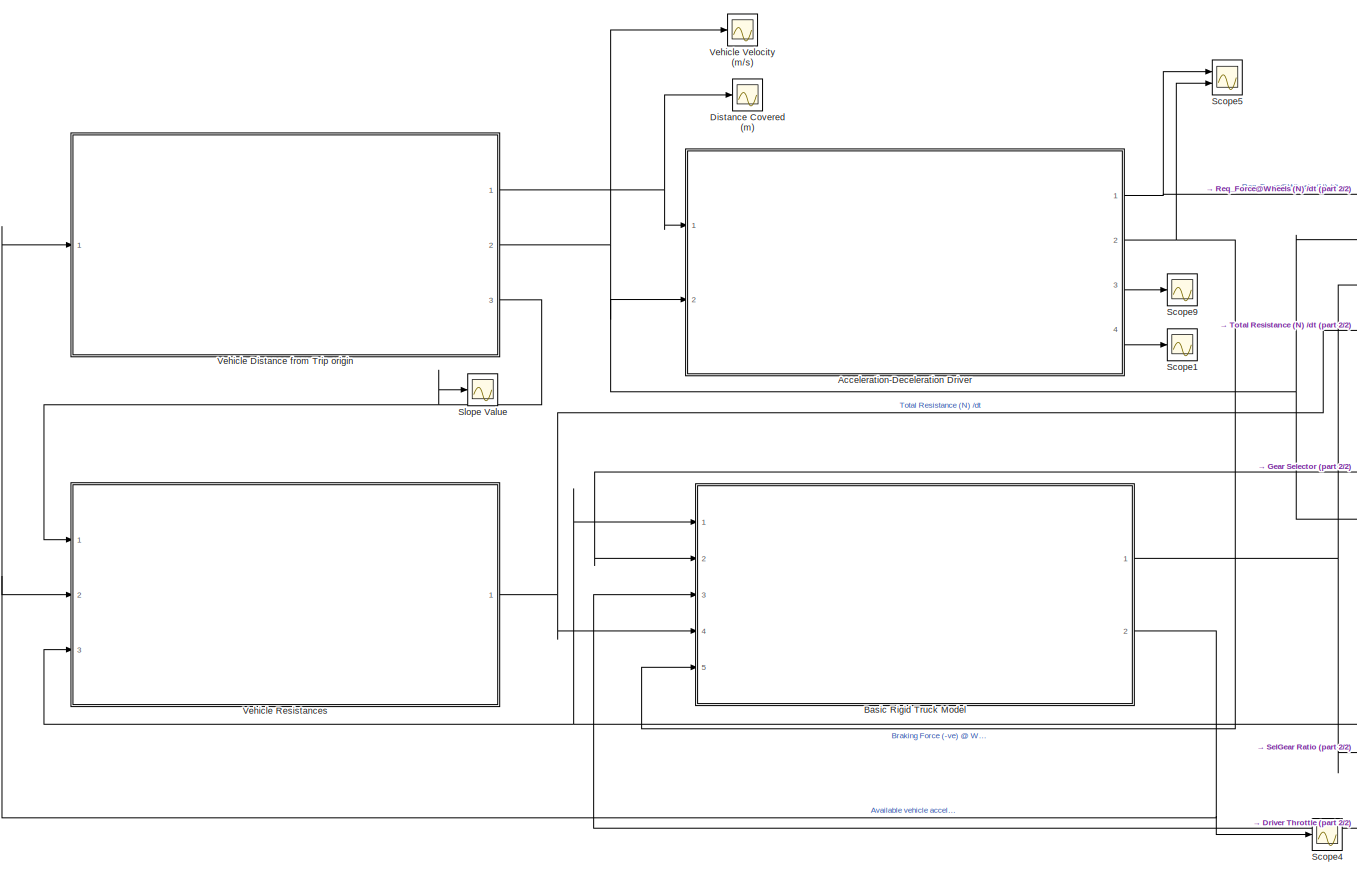
[diagram: root canvas - part 1/2, left side, full height]
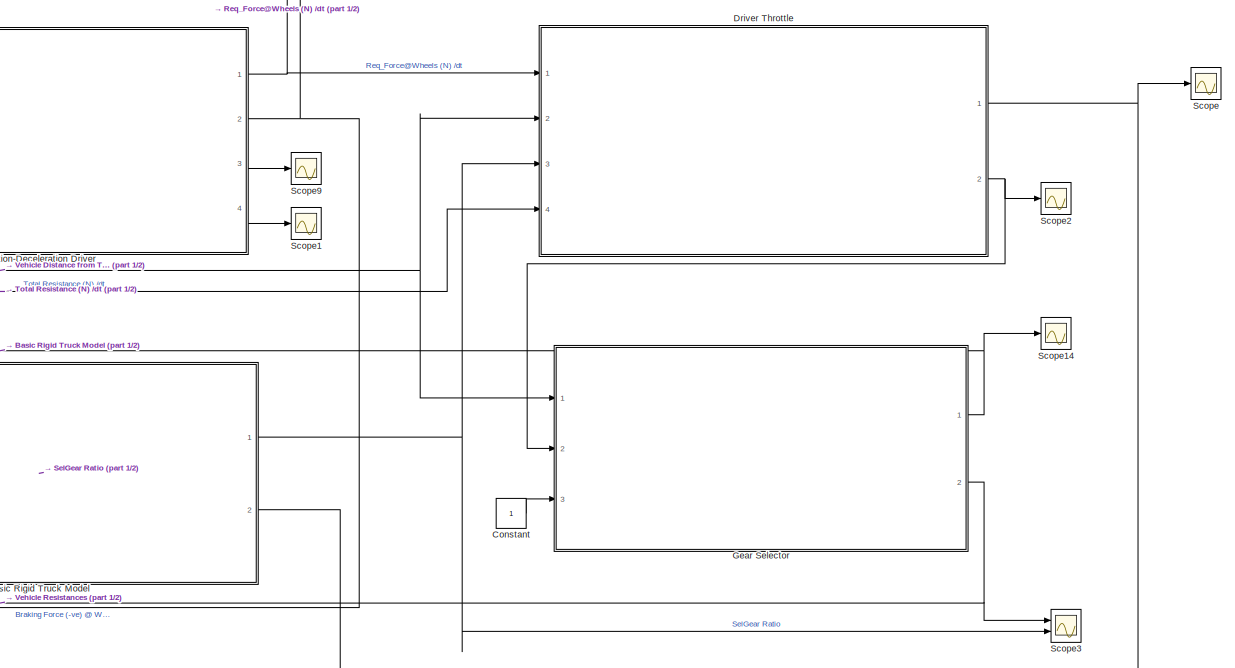
[diagram: root canvas - part 2/2, right side, full height]
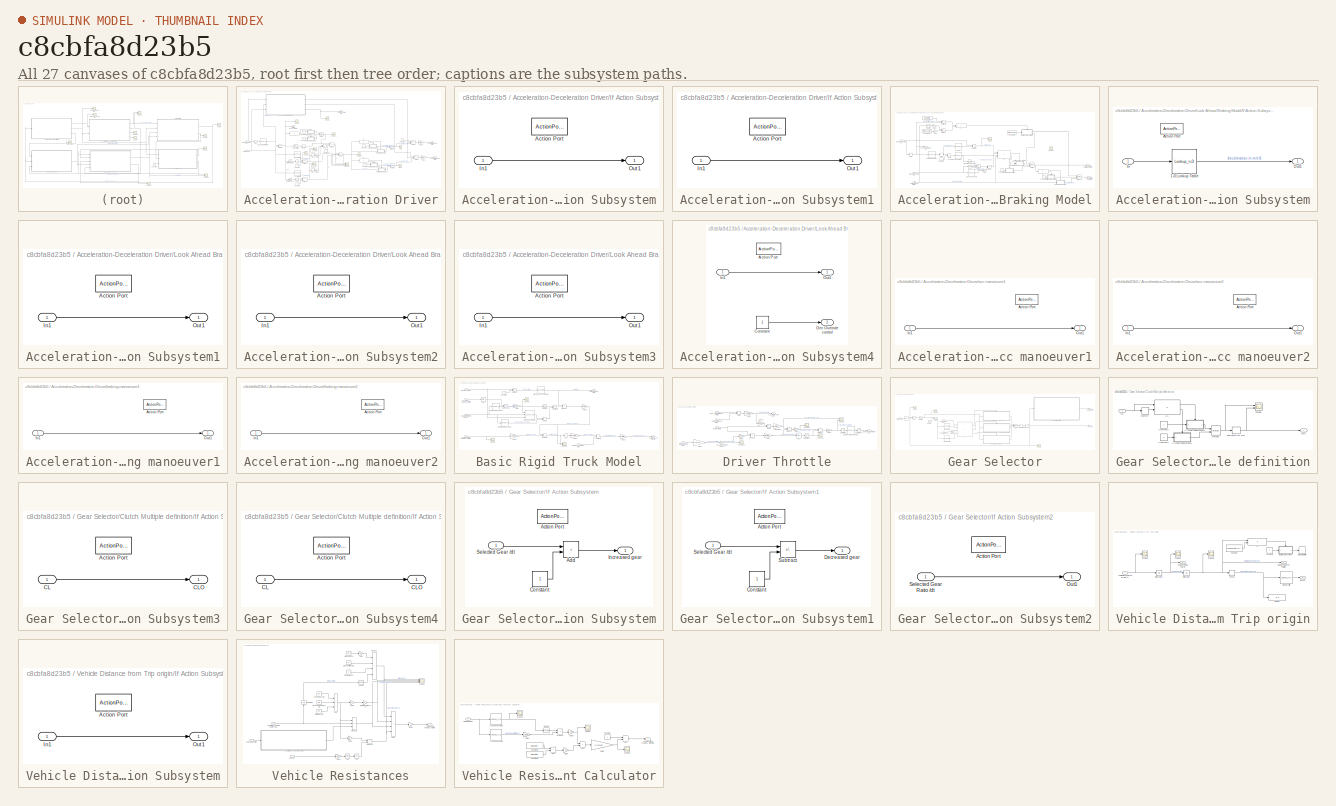
[diagram: thumbnail index - all 27 canvases of the model, root first then tree order]
MODEL slx_c8cbfa8d23b5
KIND model
CONFIG AbsTol = auto
CONFIG EnableMultiTasking = off
CONFIG FixedStep = dt
CONFIG MaxStep = auto
CONFIG MinStep = auto
CONFIG RelTol = 1e-3
CONFIG SampleTimeConstraint = Unconstrained
CONFIG SolverName = FixedStepAuto
CONFIG StartTime = 0.0
CONFIG StopTime = 90
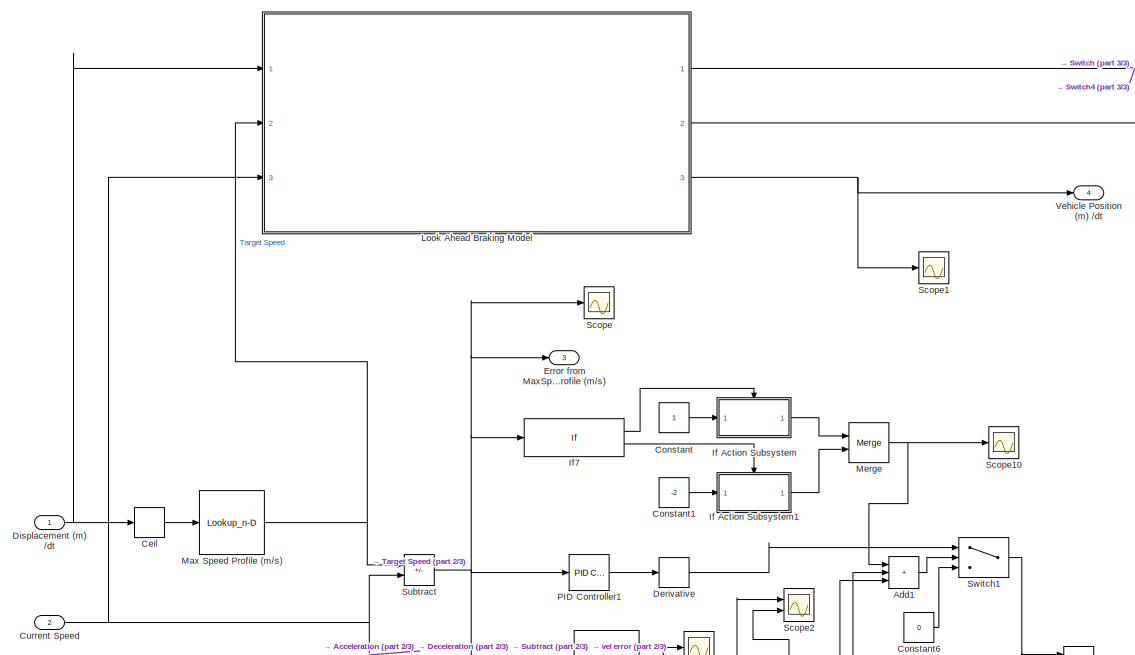
[diagram: Acceleration-Deceleration Driver - part 1/3, top left region]
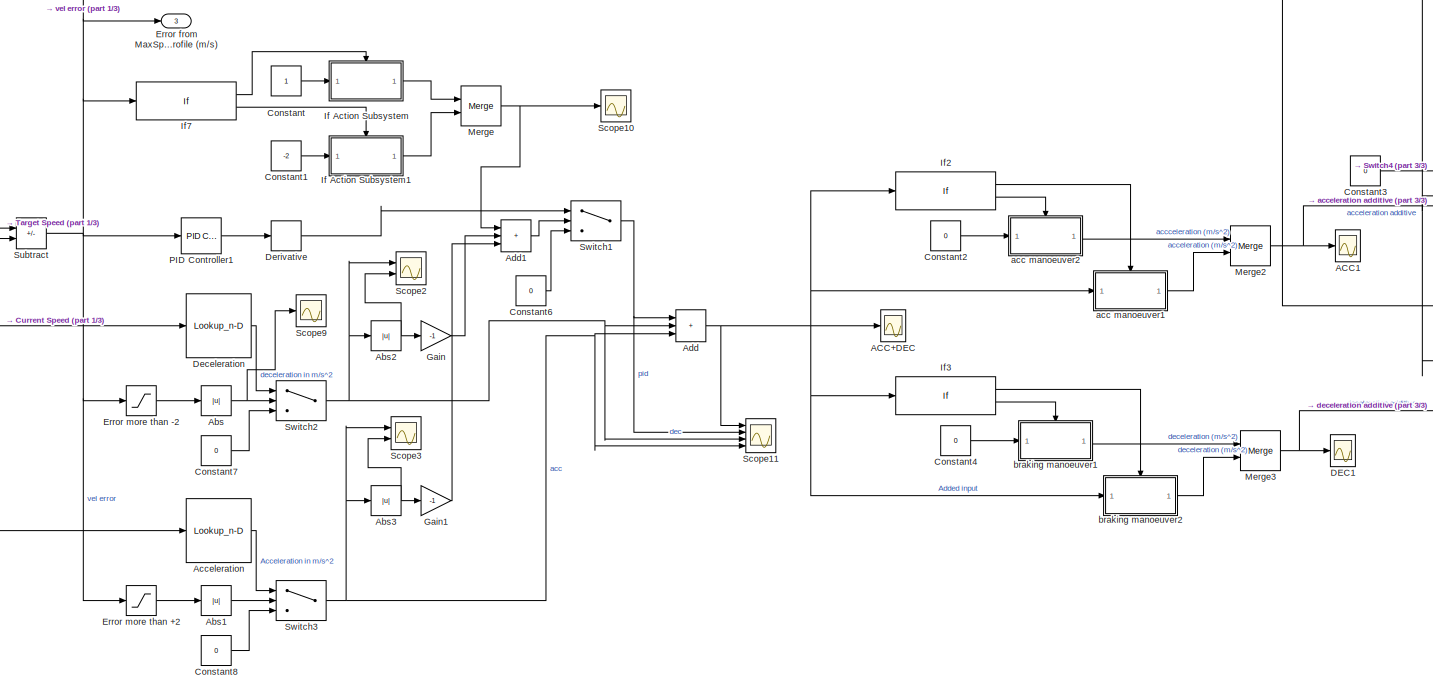
[diagram: Acceleration-Deceleration Driver - part 2/3, central region]
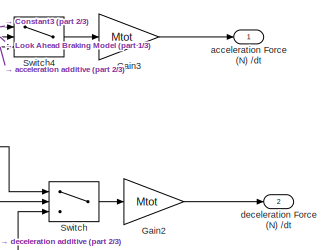
[diagram: Acceleration-Deceleration Driver - part 3/3, middle right region]
BLOCK [SubSystem] Acceleration-Deceleration Driver
  Ports = [2, 4]
  RequestExecContextInheritance = off
BLOCK [Scope] Acceleration-Deceleration Driver/ACC+DEC
  Floating = off
  NumInputPorts = 1
  Ports = [1]
  ScopeSpecificationString = Simulink.scopes.TimeScopeBlockCfg('CurrentConfiguration', extmgr.ConfigurationSet(extmgr.Configuration('Core','General UI',true),extmgr.Configuration('Core','Source UI',true),extmgr.Configuration('Sources','WiredSimulink',true),extmgr.Configuration('Visuals','Time Domain',true,'SerializedDisplays',{struct('MinYLimReal','-0.44741','MaxYLimReal','1.16082','YLabelReal','','MinYLimMag','0.00000','MaxY...<+1360ch>
BLOCK [Scope] Acceleration-Deceleration Driver/ACC1
  Floating = off
  NumInputPorts = 1
  Ports = [1]
  ScopeSpecificationString = Simulink.scopes.TimeScopeBlockCfg('CurrentConfiguration', extmgr.ConfigurationSet(extmgr.Configuration('Core','General UI',true),extmgr.Configuration('Core','Source UI',true),extmgr.Configuration('Sources','WiredSimulink',true,'DataLoggingVariableName','ScopeData1'),extmgr.Configuration('Visuals','Time Domain',true,'SerializedDisplays',{struct('MinYLimReal','-0.125','MaxYLimReal','1.125','YLabelRe...<+1398ch>
BLOCK [Abs] Acceleration-Deceleration Driver/Abs
  SaturateOnIntegerOverflow = off
BLOCK [Abs] Acceleration-Deceleration Driver/Abs1
  SaturateOnIntegerOverflow = off
BLOCK [Abs] Acceleration-Deceleration Driver/Abs2
  SaturateOnIntegerOverflow = off
BLOCK [Abs] Acceleration-Deceleration Driver/Abs3
  SaturateOnIntegerOverflow = off
BLOCK [Lookup_n-D] Acceleration-Deceleration Driver/Acceleration
  BreakpointsForDimension1 = AccLim(:,1)
  InputPortMap = u0
  InternalRulePriority = Speed
  NumberOfTableDimensions = 1
  Ports = [1, 1]
  RndMeth = Simplest
  Table = AccLim(:,2)
BLOCK [Sum] Acceleration-Deceleration Driver/Add
  IconShape = rectangular
  Inputs = +++
  Ports = [3, 1]
BLOCK [Sum] Acceleration-Deceleration Driver/Add1
  IconShape = rectangular
  Inputs = +++
  Ports = [3, 1]
BLOCK [Rounding] Acceleration-Deceleration Driver/Ceil
  Operator = ceil
BLOCK [Constant] Acceleration-Deceleration Driver/Constant
BLOCK [Constant] Acceleration-Deceleration Driver/Constant1
  Value = -2
BLOCK [Constant] Acceleration-Deceleration Driver/Constant2
  Value = 0
BLOCK [Constant] Acceleration-Deceleration Driver/Constant3
  Value = 0
BLOCK [Constant] Acceleration-Deceleration Driver/Constant4
  Value = 0
BLOCK [Constant] Acceleration-Deceleration Driver/Constant6
  Value = 0
BLOCK [Constant] Acceleration-Deceleration Driver/Constant7
  Value = 0
BLOCK [Constant] Acceleration-Deceleration Driver/Constant8
  Value = 0
BLOCK [Inport] Acceleration-Deceleration Driver/Current Speed
  Port = 2
BLOCK [Scope] Acceleration-Deceleration Driver/DEC1
  Floating = off
  NumInputPorts = 1
  Ports = [1]
  ScopeSpecificationString = Simulink.scopes.TimeScopeBlockCfg('CurrentConfiguration', extmgr.ConfigurationSet(extmgr.Configuration('Core','General UI',true),extmgr.Configuration('Core','Source UI',true),extmgr.Configuration('Sources','WiredSimulink',true,'DataLoggingVariableName','ScopeData2'),extmgr.Configuration('Visuals','Time Domain',true,'SerializedDisplays',{struct('MinYLimReal','-0.32241','MaxYLimReal','0.03582','YLab...<+1409ch>
BLOCK [Lookup_n-D] Acceleration-Deceleration Driver/Deceleration
  BreakpointsForDimension1 = AccLim(:,1)
  InputPortMap = u0
  InternalRulePriority = Speed
  NumberOfTableDimensions = 1
  Ports = [1, 1]
  RndMeth = Simplest
  Table = AccLim(:,3)
BLOCK [Derivative] Acceleration-Deceleration Driver/Derivative
BLOCK [Inport] Acceleration-Deceleration Driver/Displacement (m) //dt
BLOCK [Outport] Acceleration-Deceleration Driver/Error from MaxSpeedProfile (m//s)
  Port = 3
BLOCK [Saturate] Acceleration-Deceleration Driver/Error more than +2
  LowerLimit = 4
  UpperLimit = inf
BLOCK [Saturate] Acceleration-Deceleration Driver/Error more than -2
  LowerLimit = -inf
  UpperLimit = -4
BLOCK [Gain] Acceleration-Deceleration Driver/Gain
  Gain = -1
BLOCK [Gain] Acceleration-Deceleration Driver/Gain1
  Gain = -1
BLOCK [Gain] Acceleration-Deceleration Driver/Gain2
  Gain = Mtot
BLOCK [Gain] Acceleration-Deceleration Driver/Gain3
  Gain = Mtot
BLOCK [SubSystem] Acceleration-Deceleration Driver/If Action Subsystem
  Ports = [1, 1, 0, 0, 0, 0, 0, 1]
  RequestExecContextInheritance = off
  TreatAsAtomicUnit = on
BLOCK [ActionPort] Acceleration-Deceleration Driver/If Action Subsystem/Action Port
  ActionPortLabel = if(u1 > 0 & u1 <= 4)
BLOCK [Inport] Acceleration-Deceleration Driver/If Action Subsystem/In1
BLOCK [Outport] Acceleration-Deceleration Driver/If Action Subsystem/Out1
BLOCK [SubSystem] Acceleration-Deceleration Driver/If Action Subsystem1
  Ports = [1, 1, 0, 0, 0, 0, 0, 1]
  RequestExecContextInheritance = off
  TreatAsAtomicUnit = on
BLOCK [ActionPort] Acceleration-Deceleration Driver/If Action Subsystem1/Action Port
  ActionPortLabel = elseif(u1 >= -4 & u1 <0)
BLOCK [Inport] Acceleration-Deceleration Driver/If Action Subsystem1/In1
BLOCK [Outport] Acceleration-Deceleration Driver/If Action Subsystem1/Out1
BLOCK [If] Acceleration-Deceleration Driver/If2
  Ports = [1, 2]
BLOCK [If] Acceleration-Deceleration Driver/If3
  IfExpression = u1 < 0
  Ports = [1, 2]
BLOCK [If] Acceleration-Deceleration Driver/If7
  ElseIfExpressions = u1 >= -4 & u1 <0
  IfExpression = u1 > 0 & u1 <= 4
  Ports = [1, 2]
  ShowElse = off
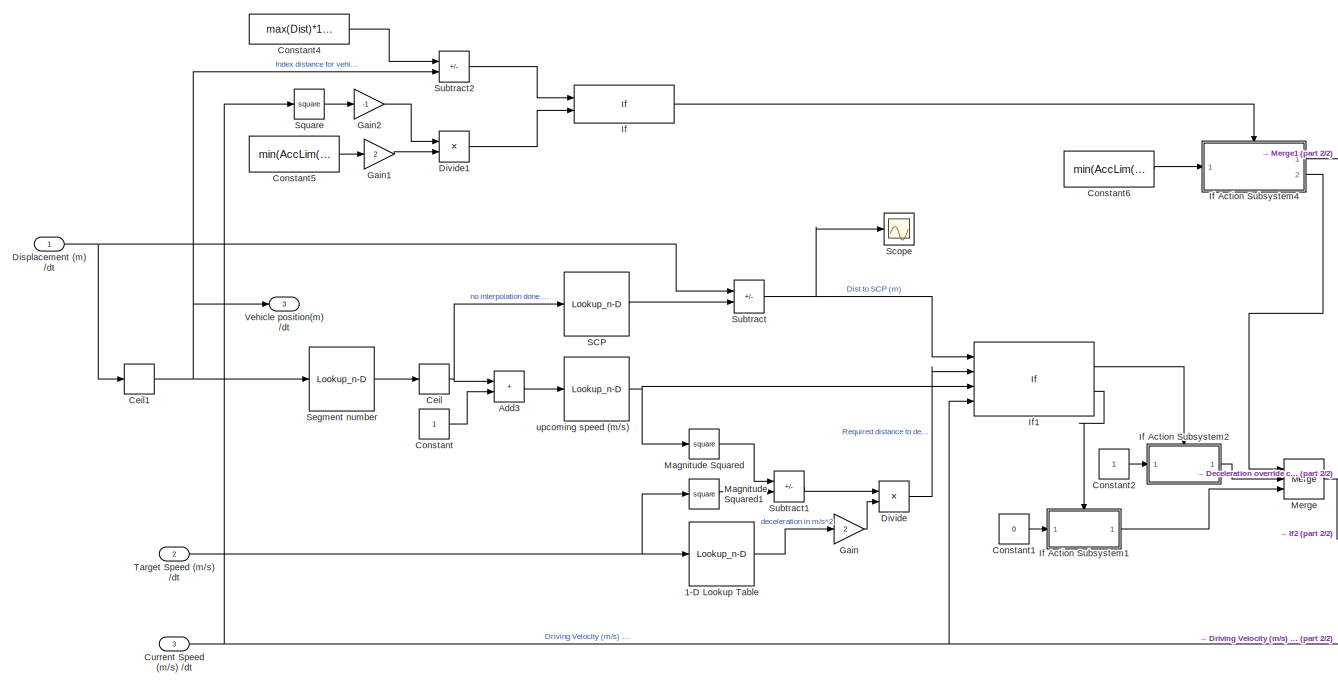
[diagram: Acceleration-Deceleration Driver/Look Ahead Braking Model - part 1/2, center side, full height]
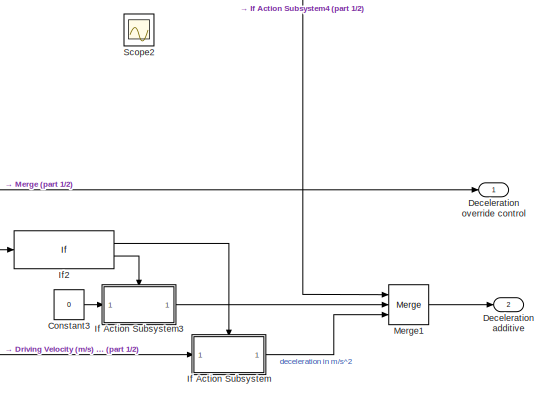
[diagram: Acceleration-Deceleration Driver/Look Ahead Braking Model - part 2/2, bottom right region]
BLOCK [SubSystem] Acceleration-Deceleration Driver/Look Ahead Braking Model
  Ports = [3, 3]
  RequestExecContextInheritance = off
BLOCK [Lookup_n-D] Acceleration-Deceleration Driver/Look Ahead Braking Model/1-D Lookup Table
  BreakpointsForDimension1 = AccLim(:,1)
  InputPortMap = u0
  InternalRulePriority = Speed
  NumberOfTableDimensions = 1
  Ports = [1, 1]
  RndMeth = Simplest
  Table = AccLim(:,3)
BLOCK [Sum] Acceleration-Deceleration Driver/Look Ahead Braking Model/Add3
  IconShape = rectangular
  Ports = [2, 1]
BLOCK [Rounding] Acceleration-Deceleration Driver/Look Ahead Braking Model/Ceil
  Operator = ceil
BLOCK [Rounding] Acceleration-Deceleration Driver/Look Ahead Braking Model/Ceil1
  Operator = ceil
BLOCK [Constant] Acceleration-Deceleration Driver/Look Ahead Braking Model/Constant
BLOCK [Constant] Acceleration-Deceleration Driver/Look Ahead Braking Model/Constant1
  Value = 0
BLOCK [Constant] Acceleration-Deceleration Driver/Look Ahead Braking Model/Constant2
BLOCK [Constant] Acceleration-Deceleration Driver/Look Ahead Braking Model/Constant3
  Value = 0
BLOCK [Constant] Acceleration-Deceleration Driver/Look Ahead Braking Model/Constant4
  Value = max(Dist)*1000
BLOCK [Constant] Acceleration-Deceleration Driver/Look Ahead Braking Model/Constant5
  Value = min(AccLim(:,3))
BLOCK [Constant] Acceleration-Deceleration Driver/Look Ahead Braking Model/Constant6
  Value = min(AccLim(:,3))
BLOCK [Inport] Acceleration-Deceleration Driver/Look Ahead Braking Model/Current Speed (m//s) //dt
  Port = 3
BLOCK [Outport] Acceleration-Deceleration Driver/Look Ahead Braking Model/Deceleration additive
  Port = 2
BLOCK [Outport] Acceleration-Deceleration Driver/Look Ahead Braking Model/Deceleration override control
BLOCK [Inport] Acceleration-Deceleration Driver/Look Ahead Braking Model/Displacement (m) //dt
BLOCK [Product] Acceleration-Deceleration Driver/Look Ahead Braking Model/Divide
  Inputs = */
  Ports = [2, 1]
BLOCK [Product] Acceleration-Deceleration Driver/Look Ahead Braking Model/Divide1
  Inputs = */
  Ports = [2, 1]
BLOCK [Gain] Acceleration-Deceleration Driver/Look Ahead Braking Model/Gain
  Gain = 2
BLOCK [Gain] Acceleration-Deceleration Driver/Look Ahead Braking Model/Gain1
  Gain = 2
BLOCK [Gain] Acceleration-Deceleration Driver/Look Ahead Braking Model/Gain2
  Gain = -1
BLOCK [If] Acceleration-Deceleration Driver/Look Ahead Braking Model/If
  IfExpression = u1 == u2
  NumInputs = 2
  Ports = [2, 1]
  ShowElse = off
BLOCK [SubSystem] Acceleration-Deceleration Driver/Look Ahead Braking Model/If Action Subsystem
  Ports = [1, 1, 0, 0, 0, 0, 0, 1]
  RequestExecContextInheritance = off
  TreatAsAtomicUnit = on
BLOCK [Lookup_n-D] Acceleration-Deceleration Driver/Look Ahead Braking Model/If Action Subsystem/1-D Lookup Table
  BreakpointsForDimension1 = AccLim(:,1)
  InputPortMap = u0
  InternalRulePriority = Speed
  NumberOfTableDimensions = 1
  Ports = [1, 1]
  RndMeth = Simplest
  Table = AccLim(:,3)
BLOCK [ActionPort] Acceleration-Deceleration Driver/Look Ahead Braking Model/If Action Subsystem/Action Port
  ActionPortLabel = if(u1 > 0)
BLOCK [Inport] Acceleration-Deceleration Driver/Look Ahead Braking Model/If Action Subsystem/In
BLOCK [Outport] Acceleration-Deceleration Driver/Look Ahead Braking Model/If Action Subsystem/Out1
BLOCK [SubSystem] Acceleration-Deceleration Driver/Look Ahead Braking Model/If Action Subsystem1
  Ports = [1, 1, 0, 0, 0, 0, 0, 1]
  RequestExecContextInheritance = off
  TreatAsAtomicUnit = on
BLOCK [ActionPort] Acceleration-Deceleration Driver/Look Ahead Braking Model/If Action Subsystem1/Action Port
  ActionPortLabel = else
BLOCK [Inport] Acceleration-Deceleration Driver/Look Ahead Braking Model/If Action Subsystem1/In1
BLOCK [Outport] Acceleration-Deceleration Driver/Look Ahead Braking Model/If Action Subsystem1/Out1
BLOCK [SubSystem] Acceleration-Deceleration Driver/Look Ahead Braking Model/If Action Subsystem2
  Ports = [1, 1, 0, 0, 0, 0, 0, 1]
  RequestExecContextInheritance = off
  TreatAsAtomicUnit = on
BLOCK [ActionPort] Acceleration-Deceleration Driver/Look Ahead Braking Model/If Action Subsystem2/Action Port
  ActionPortLabel = if(u1 <= u2 & u3 < u4)
BLOCK [Inport] Acceleration-Deceleration Driver/Look Ahead Braking Model/If Action Subsystem2/In1
BLOCK [Outport] Acceleration-Deceleration Driver/Look Ahead Braking Model/If Action Subsystem2/Out1
BLOCK [SubSystem] Acceleration-Deceleration Driver/Look Ahead Braking Model/If Action Subsystem3
  Ports = [1, 1, 0, 0, 0, 0, 0, 1]
  RequestExecContextInheritance = off
  TreatAsAtomicUnit = on
BLOCK [ActionPort] Acceleration-Deceleration Driver/Look Ahead Braking Model/If Action Subsystem3/Action Port
  ActionPortLabel = else
BLOCK [Inport] Acceleration-Deceleration Driver/Look Ahead Braking Model/If Action Subsystem3/In1
BLOCK [Outport] Acceleration-Deceleration Driver/Look Ahead Braking Model/If Action Subsystem3/Out1
BLOCK [SubSystem] Acceleration-Deceleration Driver/Look Ahead Braking Model/If Action Subsystem4
  Ports = [1, 2, 0, 0, 0, 0, 0, 1]
  RequestExecContextInheritance = off
  TreatAsAtomicUnit = on
BLOCK [ActionPort] Acceleration-Deceleration Driver/Look Ahead Braking Model/If Action Subsystem4/Action Port
  ActionPortLabel = if(u1 == u2)
BLOCK [Constant] Acceleration-Deceleration Driver/Look Ahead Braking Model/If Action Subsystem4/Constant
BLOCK [Outport] Acceleration-Deceleration Driver/Look Ahead Braking Model/If Action Subsystem4/Dec Override control
  Port = 2
BLOCK [Inport] Acceleration-Deceleration Driver/Look Ahead Braking Model/If Action Subsystem4/In1
BLOCK [Outport] Acceleration-Deceleration Driver/Look Ahead Braking Model/If Action Subsystem4/Out1
BLOCK [If] Acceleration-Deceleration Driver/Look Ahead Braking Model/If1
  IfExpression = u1 <= u2 & u3 < u4
  NumInputs = 4
  Ports = [4, 2]
BLOCK [If] Acceleration-Deceleration Driver/Look Ahead Braking Model/If2
  Ports = [1, 2]
BLOCK [Math] Acceleration-Deceleration Driver/Look Ahead Braking Model/Magnitude Squared
  Operator = square
  Ports = [1, 1]
BLOCK [Math] Acceleration-Deceleration Driver/Look Ahead Braking Model/Magnitude Squared1
  Operator = square
  Ports = [1, 1]
BLOCK [Merge] Acceleration-Deceleration Driver/Look Ahead Braking Model/Merge
  Inputs = 3
  Ports = [3, 1]
BLOCK [Merge] Acceleration-Deceleration Driver/Look Ahead Braking Model/Merge1
  Inputs = 3
  Ports = [3, 1]
BLOCK [Lookup_n-D] Acceleration-Deceleration Driver/Look Ahead Braking Model/SCP
  BreakpointsForDimension1 = SegNo
  BreakpointsForDimension2 = G1Inprpm
  InputPortMap = u0
  InternalRulePriority = Speed
  InterpMethod = Linear Lagrange
  NumberOfTableDimensions = 1
  Ports = [1, 1]
  RndMeth = Simplest
  Table = CovDist
BLOCK [Scope] Acceleration-Deceleration Driver/Look Ahead Braking Model/Scope
  Floating = off
  NumInputPorts = 1
  Ports = [1]
  ScopeSpecificationString = Simulink.scopes.TimeScopeBlockCfg('CurrentConfiguration', extmgr.ConfigurationSet(extmgr.Configuration('Core','General UI',true),extmgr.Configuration('Core','Source UI',true),extmgr.Configuration('Sources','WiredSimulink',true,'DataLoggingVariableName','ScopeData3'),extmgr.Configuration('Visuals','Time Domain',true,'SerializedDisplays',{struct('MinYLimReal','-7.62346','MaxYLimReal','68.74449','YLa...<+1378ch>
BLOCK [Scope] Acceleration-Deceleration Driver/Look Ahead Braking Model/Scope2
  Floating = off
  NumInputPorts = 1
  Ports = [1]
  ScopeSpecificationString = Simulink.scopes.TimeScopeBlockCfg('CurrentConfiguration', extmgr.ConfigurationSet(extmgr.Configuration('Core','General UI',true),extmgr.Configuration('Core','Source UI',true),extmgr.Configuration('Sources','WiredSimulink',true,'DataLoggingVariableName','ScopeData33'),extmgr.Configuration('Visuals','Time Domain',true),extmgr.Configuration('Tools','Plot Navigation',true),extmgr.Configuration('Tools'...<+41ch>
BLOCK [Lookup_n-D] Acceleration-Deceleration Driver/Look Ahead Braking Model/Segment number
  BreakpointsForDimension1 = CovDist
  BreakpointsForDimension2 = G1Inprpm
  InputPortMap = u0
  InternalRulePriority = Speed
  InterpMethod = Linear Lagrange
  NumberOfTableDimensions = 1
  Ports = [1, 1]
  RndMeth = Simplest
  Table = SegNo
BLOCK [Math] Acceleration-Deceleration Driver/Look Ahead Braking Model/Square
  Operator = square
  Ports = [1, 1]
BLOCK [Sum] Acceleration-Deceleration Driver/Look Ahead Braking Model/Subtract
  IconShape = rectangular
  Inputs = -+
  Ports = [2, 1]
BLOCK [Sum] Acceleration-Deceleration Driver/Look Ahead Braking Model/Subtract1
  IconShape = rectangular
  Inputs = +-
  Ports = [2, 1]
BLOCK [Sum] Acceleration-Deceleration Driver/Look Ahead Braking Model/Subtract2
  IconShape = rectangular
  Inputs = +-
  Ports = [2, 1]
BLOCK [Inport] Acceleration-Deceleration Driver/Look Ahead Braking Model/Target Speed (m//s) //dt
  Port = 2
BLOCK [Outport] Acceleration-Deceleration Driver/Look Ahead Braking Model/Vehicle position(m) //dt
  Port = 3
BLOCK [Lookup_n-D] Acceleration-Deceleration Driver/Look Ahead Braking Model/upcoming speed (m//s)
  BreakpointsForDimension1 = SegNo
  BreakpointsForDimension2 = G1Inprpm
  InputPortMap = u0
  InternalRulePriority = Speed
  InterpMethod = Linear Lagrange
  NumberOfTableDimensions = 1
  Ports = [1, 1]
  RndMeth = Simplest
  Table = SegSPLatinmps
BLOCK [Lookup_n-D] Acceleration-Deceleration Driver/Max Speed Profile (m//s)
  BreakpointsForDimension1 = [1:length(MaxSpeedProfile)]
  BreakpointsForDimension2 = G1Inprpm
  InputPortMap = u0
  InternalRulePriority = Speed
  InterpMethod = Linear Lagrange
  NumberOfTableDimensions = 1
  Ports = [1, 1]
  RndMeth = Simplest
  Table = MaxSpeedProfile
BLOCK [Merge] Acceleration-Deceleration Driver/Merge
  Ports = [2, 1]
BLOCK [Merge] Acceleration-Deceleration Driver/Merge2
  Ports = [2, 1]
BLOCK [Merge] Acceleration-Deceleration Driver/Merge3
  Ports = [2, 1]
BLOCK [Reference] Acceleration-Deceleration Driver/PID Controller1  REF=pid_lib/PID Controller
  Ports = [1, 1]
  SourceBlock = pid_lib/PID Controller
  SourceProductBaseCode = SL
  SourceType = PID 1dof
BLOCK [Scope] Acceleration-Deceleration Driver/Scope
  Floating = off
  NumInputPorts = 1
  Ports = [1]
  ScopeSpecificationString = Simulink.scopes.TimeScopeBlockCfg('CurrentConfiguration', extmgr.ConfigurationSet(extmgr.Configuration('Core','General UI',true),extmgr.Configuration('Core','Source UI',true),extmgr.Configuration('Sources','WiredSimulink',true,'DataLoggingVariableName','ScopeData18'),extmgr.Configuration('Visuals','Time Domain',true,'SerializedDisplays',{struct('MinYLimReal','-1.60531','MaxYLimReal','26.65941','YL...<+1373ch>
BLOCK [Scope] Acceleration-Deceleration Driver/Scope1
  Floating = off
  NumInputPorts = 1
  Ports = [1]
  ScopeSpecificationString = Simulink.scopes.TimeScopeBlockCfg('CurrentConfiguration', extmgr.ConfigurationSet(extmgr.Configuration('Core','General UI',true),extmgr.Configuration('Core','Source UI',true),extmgr.Configuration('Sources','WiredSimulink',true,'DataLoggingVariableName','ScopeData24'),extmgr.Configuration('Visuals','Time Domain',true,'SerializedDisplays',{struct('MinYLimReal','-7.5','MaxYLimReal','67.5','YLabelReal...<+1370ch>
BLOCK [Scope] Acceleration-Deceleration Driver/Scope10
  Floating = off
  NumInputPorts = 1
  Ports = [1]
  ScopeSpecificationString = Simulink.scopes.TimeScopeBlockCfg('CurrentConfiguration', extmgr.ConfigurationSet(extmgr.Configuration('Core','General UI',true),extmgr.Configuration('Core','Source UI',true),extmgr.Configuration('Sources','WiredSimulink',true,'DataLoggingVariableName','ScopeData4'),extmgr.Configuration('Visuals','Time Domain',true,'SerializedDisplays',{struct('MinYLimReal','0.9','MaxYLimReal','1.1','YLabelReal','...<+1394ch>
BLOCK [Scope] Acceleration-Deceleration Driver/Scope11
  Floating = off
  NumInputPorts = 4
  Ports = [4]
  ScopeSpecificationString = Simulink.scopes.TimeScopeBlockCfg('CurrentConfiguration', extmgr.ConfigurationSet(extmgr.Configuration('Core','General UI',true),extmgr.Configuration('Core','Source UI',true),extmgr.Configuration('Sources','WiredSimulink',true,'DataLoggingVariableName','ScopeData14'),extmgr.Configuration('Visuals','Time Domain',true,'SerializedDisplays',{struct('MinYLimReal','-0.44741','MaxYLimReal','1.16082','YLa...<+1510ch>
BLOCK [Scope] Acceleration-Deceleration Driver/Scope2
  Floating = off
  NumInputPorts = 2
  Ports = [2]
  ScopeSpecificationString = Simulink.scopes.TimeScopeBlockCfg('CurrentConfiguration', extmgr.ConfigurationSet(extmgr.Configuration('Core','General UI',true),extmgr.Configuration('Core','Source UI',true),extmgr.Configuration('Sources','WiredSimulink',true,'DataLoggingVariableName','ScopeData1'),extmgr.Configuration('Visuals','Time Domain',true),extmgr.Configuration('Tools','Plot Navigation',true),extmgr.Configuration('Tools',...<+40ch>
BLOCK [Scope] Acceleration-Deceleration Driver/Scope3
  Floating = off
  NumInputPorts = 2
  Ports = [2]
  ScopeSpecificationString = Simulink.scopes.TimeScopeBlockCfg('CurrentConfiguration', extmgr.ConfigurationSet(extmgr.Configuration('Core','General UI',true),extmgr.Configuration('Core','Source UI',true),extmgr.Configuration('Sources','WiredSimulink',true,'DataLoggingVariableName','ScopeData2'),extmgr.Configuration('Visuals','Time Domain',true),extmgr.Configuration('Tools','Plot Navigation',true),extmgr.Configuration('Tools',...<+40ch>
BLOCK [Scope] Acceleration-Deceleration Driver/Scope9
  Floating = off
  NumInputPorts = 1
  Ports = [1]
  ScopeSpecificationString = Simulink.scopes.TimeScopeBlockCfg('CurrentConfiguration', extmgr.ConfigurationSet(extmgr.Configuration('Core','General UI',true),extmgr.Configuration('Core','Source UI',true),extmgr.Configuration('Sources','WiredSimulink',true,'DataLoggingVariableName','ScopeData15'),extmgr.Configuration('Visuals','Time Domain',true,'SerializedDisplays',{struct('MinYLimReal','3.00000','MaxYLimReal','5.00000','YLab...<+1391ch>
BLOCK [Sum] Acceleration-Deceleration Driver/Subtract
  IconShape = rectangular
  Inputs = +-
  Ports = [2, 1]
BLOCK [Switch] Acceleration-Deceleration Driver/Switch
  Criteria = u2 > Threshold
  InputSameDT = off
  SaturateOnIntegerOverflow = off
BLOCK [Switch] Acceleration-Deceleration Driver/Switch1
  Criteria = u2 > Threshold
  InputSameDT = off
  SaturateOnIntegerOverflow = off
BLOCK [Switch] Acceleration-Deceleration Driver/Switch2
  Criteria = u2 > Threshold
  InputSameDT = off
  SaturateOnIntegerOverflow = off
  Threshold = 4
BLOCK [Switch] Acceleration-Deceleration Driver/Switch3
  Criteria = u2 > Threshold
  InputSameDT = off
  SaturateOnIntegerOverflow = off
  Threshold = 4
BLOCK [Switch] Acceleration-Deceleration Driver/Switch4
  Criteria = u2 > Threshold
  InputSameDT = off
  SaturateOnIntegerOverflow = off
BLOCK [Outport] Acceleration-Deceleration Driver/Vehicle Position (m) //dt
  Port = 4
BLOCK [SubSystem] Acceleration-Deceleration Driver/acc manoeuver1
  Ports = [1, 1, 0, 0, 0, 0, 0, 1]
  RequestExecContextInheritance = off
  TreatAsAtomicUnit = on
BLOCK [ActionPort] Acceleration-Deceleration Driver/acc manoeuver1/Action Port
  ActionPortLabel = if(u1 > 0)
BLOCK [Inport] Acceleration-Deceleration Driver/acc manoeuver1/In1
BLOCK [Outport] Acceleration-Deceleration Driver/acc manoeuver1/Out1
BLOCK [SubSystem] Acceleration-Deceleration Driver/acc manoeuver2
  Ports = [1, 1, 0, 0, 0, 0, 0, 1]
  RequestExecContextInheritance = off
  TreatAsAtomicUnit = on
BLOCK [ActionPort] Acceleration-Deceleration Driver/acc manoeuver2/Action Port
  ActionPortLabel = else
BLOCK [Inport] Acceleration-Deceleration Driver/acc manoeuver2/In1
BLOCK [Outport] Acceleration-Deceleration Driver/acc manoeuver2/Out1
BLOCK [Outport] Acceleration-Deceleration Driver/acceleration Force (N) //dt
BLOCK [SubSystem] Acceleration-Deceleration Driver/braking manoeuver1
  Ports = [1, 1, 0, 0, 0, 0, 0, 1]
  RequestExecContextInheritance = off
  TreatAsAtomicUnit = on
BLOCK [ActionPort] Acceleration-Deceleration Driver/braking manoeuver1/Action Port
  ActionPortLabel = else
BLOCK [Inport] Acceleration-Deceleration Driver/braking manoeuver1/In1
BLOCK [Outport] Acceleration-Deceleration Driver/braking manoeuver1/Out1
BLOCK [SubSystem] Acceleration-Deceleration Driver/braking manoeuver2
  Ports = [1, 1, 0, 0, 0, 0, 0, 1]
  RequestExecContextInheritance = off
  TreatAsAtomicUnit = on
BLOCK [ActionPort] Acceleration-Deceleration Driver/braking manoeuver2/Action Port
  ActionPortLabel = if(u1 < 0)
BLOCK [Inport] Acceleration-Deceleration Driver/braking manoeuver2/In1
BLOCK [Outport] Acceleration-Deceleration Driver/braking manoeuver2/Out1
BLOCK [Outport] Acceleration-Deceleration Driver/deceleration Force (N) //dt
  Port = 2
BLOCK [SubSystem] Basic Rigid Truck Model
  Ports = [5, 2]
  RequestExecContextInheritance = off
BLOCK [Inport] Basic Rigid Truck Model/0 - no drive // 1- Fully released clutch multiple
  Port = 2
BLOCK [Abs] Basic Rigid Truck Model/Abs
  SaturateOnIntegerOverflow = off
BLOCK [Sum] Basic Rigid Truck Model/Add2
  IconShape = rectangular
  Ports = [2, 1]
BLOCK [Inport] Basic Rigid Truck Model/Braking_Force (-ve) (N) //dt
  Port = 5
BLOCK [Product] Basic Rigid Truck Model/Clutch value
  Ports = [2, 1]
BLOCK [Constant] Basic Rigid Truck Model/Constant
BLOCK [LookupNDDirect] Basic Rigid Truck Model/Direct Lookup Table (n-D)
  NumberOfTableDimensions = 1
  Ports = [1, 1]
  Table = GRa
BLOCK [Inport] Basic Rigid Truck Model/Engine Rpm from driver //dt
  Port = 3
BLOCK [Lookup_n-D] Basic Rigid Truck Model/Engine Torque Table
  BreakpointsForDimension1 = EngineRpm
  BreakpointsForDimension2 = G1Inprpm
  InputPortMap = u0
  InternalRulePriority = Speed
  InterpMethod = Linear Lagrange
  NumberOfTableDimensions = 1
  Ports = [1, 1]
  RndMeth = Simplest
  Table = FLoadTor
BLOCK [Gain] Basic Rigid Truck Model/FDR1
  Gain = FDR
BLOCK [Lookup_n-D] Basic Rigid Truck Model/GBX Loss Tables
  BreakpointsForDimension1 = GInpTor
  BreakpointsForDimension2 = GInprpm
  BreakpointsForDimension3 = GearNo
  InputPortMap = u0,u1,u2
  InternalRulePriority = Speed
  InterpMethod = Linear Lagrange
  NumberOfTableDimensions = 3
  Ports = [3, 1]
  RndMeth = Simplest
  Table = GTorLoss
BLOCK [Gain] Basic Rigid Truck Model/Gain
  Gain = etaClutch
BLOCK [Gain] Basic Rigid Truck Model/Gain2
  Gain = 1/Mtot
BLOCK [Gain] Basic Rigid Truck Model/Gain4
  Gain = DynRolRad
BLOCK [Gain] Basic Rigid Truck Model/Gain6
  Gain = 1/DynRolRad
BLOCK [InitialCondition] Basic Rigid Truck Model/IC2
BLOCK [Lookup_n-D] Basic Rigid Truck Model/Motoring Torque Table
  BreakpointsForDimension1 = EngineRpm
  BreakpointsForDimension2 = G1Inprpm
  InputPortMap = u0
  InternalRulePriority = Speed
  InterpMethod = Linear Lagrange
  NumberOfTableDimensions = 1
  Ports = [1, 1]
  RndMeth = Simplest
  Table = MotoringTor
BLOCK [Product] Basic Rigid Truck Model/Product
  Ports = [2, 1]
BLOCK [Saturate] Basic Rigid Truck Model/Saturation
  LowerLimit = min(FLoadTorUse)
  UpperLimit = max(FLoadTorUse)
BLOCK [Scope] Basic Rigid Truck Model/Scope
  Floating = off
  NumInputPorts = 1
  Ports = [1]
  ScopeSpecificationString = Simulink.scopes.TimeScopeBlockCfg('CurrentConfiguration', extmgr.ConfigurationSet(extmgr.Configuration('Core','General UI',true),extmgr.Configuration('Core','Source UI',true),extmgr.Configuration('Sources','WiredSimulink',true,'DataLoggingVariableName','ScopeData10'),extmgr.Configuration('Visuals','Time Domain',true,'SerializedDisplays',{struct('MinYLimReal','-15860.78438','MaxYLimReal','1442.0378...<+1426ch>
BLOCK [Scope] Basic Rigid Truck Model/Scope1
  Floating = off
  NumInputPorts = 2
  Ports = [2]
  ScopeSpecificationString = Simulink.scopes.TimeScopeBlockCfg('CurrentConfiguration', extmgr.ConfigurationSet(extmgr.Configuration('Core','General UI',true),extmgr.Configuration('Core','Source UI',true),extmgr.Configuration('Sources','WiredSimulink',true,'DataLoggingVariableName','ScopeData17'),extmgr.Configuration('Visuals','Time Domain',true,'SerializedDisplays',{struct('MinYLimReal','-995.94579','MaxYLimReal','14542.82989...<+1511ch>
BLOCK [Scope] Basic Rigid Truck Model/Scope2
  Floating = off
  NumInputPorts = 1
  Ports = [1]
  ScopeSpecificationString = Simulink.scopes.TimeScopeBlockCfg('CurrentConfiguration', extmgr.ConfigurationSet(extmgr.Configuration('Core','General UI',true),extmgr.Configuration('Core','Source UI',true),extmgr.Configuration('Sources','WiredSimulink',true,'DataLoggingVariableName','ScopeData11'),extmgr.Configuration('Visuals','Time Domain',true,'SerializedDisplays',{struct('MinYLimReal','-117.10965','MaxYLimReal','1053.98684'...<+1412ch>
BLOCK [Inport] Basic Rigid Truck Model/Selected Gear //dt
BLOCK [Outport] Basic Rigid Truck Model/Selected Gear Ratio
BLOCK [Sum] Basic Rigid Truck Model/Subtract
  IconShape = rectangular
  Inputs = +-
  Ports = [2, 1]
BLOCK [Sum] Basic Rigid Truck Model/Subtract1
  IconShape = rectangular
  Ports = [2, 1]
BLOCK [Sum] Basic Rigid Truck Model/Subtract2
  IconShape = rectangular
  Inputs = +-
  Ports = [2, 1]
BLOCK [Sum] Basic Rigid Truck Model/Subtract3
  IconShape = rectangular
  Ports = [2, 1]
BLOCK [Inport] Basic Rigid Truck Model/Total Vehicle Resistance (-ve) (N) //dt
  Port = 4
BLOCK [Outport] Basic Rigid Truck Model/Vehicle_Acc (m//s^2) //dt
  Port = 2
BLOCK [Constant] Constant
BLOCK [Scope] Distance Covered (m)
  Floating = off
  NumInputPorts = 1
  Ports = [1]
  ScopeSpecificationString = Simulink.scopes.TimeScopeBlockCfg('CurrentConfiguration', extmgr.ConfigurationSet(extmgr.Configuration('Core','General UI',true,'FigureColor',[1 1 1]),extmgr.Configuration('Core','Source UI',true),extmgr.Configuration('Sources','WiredSimulink',true,'DataLoggingVariableName','ScopeData6'),extmgr.Configuration('Visuals','Time Domain',true,'SerializedDisplays',{struct('MinYLimReal','-7.40697','MaxYLi...<+1572ch>
BLOCK [SubSystem] Driver Throttle
  Ports = [4, 2]
  RequestExecContextInheritance = off
BLOCK [Sum] Driver Throttle/Add
  IconShape = rectangular
  Ports = [2, 1]
BLOCK [Product] Driver Throttle/Divide
  Inputs = */
  Ports = [2, 1]
BLOCK [Product] Driver Throttle/Divide2
  Inputs = */
  Ports = [2, 1]
BLOCK [Inport] Driver Throttle/Driving Velocity (m//s)//dt
  Port = 2
BLOCK [Lookup_n-D] Driver Throttle/Engine Torque Table1
  BreakpointsForDimension1 = FLoadTorUse
  BreakpointsForDimension2 = G1Inprpm
  InputPortMap = u0
  InternalRulePriority = Speed
  InterpMethod = Linear Lagrange
  NumberOfTableDimensions = 1
  Ports = [1, 1]
  RndMeth = Simplest
  Table = EngineRpmUse
BLOCK [Outport] Driver Throttle/Engine_Rpm Driver //dt
BLOCK [Gain] Driver Throttle/Gain1
  Gain = 30/pi
BLOCK [Gain] Driver Throttle/Gain10
  Gain = 1/FDR
BLOCK [Gain] Driver Throttle/Gain2
  Gain = pi/30
BLOCK [Gain] Driver Throttle/Gain3
  Gain = 1/2*pi*DynRolRad
BLOCK [Gain] Driver Throttle/Gain4
  Gain = FDR
BLOCK [Gain] Driver Throttle/Gain5
  Gain = etaClutch
BLOCK [Gain] Driver Throttle/Gain9
  Gain = DynRolRad
BLOCK [InitialCondition] Driver Throttle/IC1
  Value = 0.1
BLOCK [Product] Driver Throttle/Product
  Ports = [2, 1]
BLOCK [Product] Driver Throttle/Product1
  Ports = [2, 1]
BLOCK [Inport] Driver Throttle/Req_Force@Wheels (N) //dt
BLOCK [Saturate] Driver Throttle/Saturation
  LowerLimit = min(FLoadTorUse)
  UpperLimit = max(FLoadTorUse)
BLOCK [Saturate] Driver Throttle/Saturation1
  LowerLimit = min(EngineRpmUse)
  UpperLimit = max(EngineRpmUse)
BLOCK [Saturate] Driver Throttle/Saturation2
  LowerLimit = 0
  UpperLimit = max(EngineRpmUse)
BLOCK [Scope] Driver Throttle/Scope
  Floating = off
  NumInputPorts = 2
  Ports = [2]
  ScopeSpecificationString = Simulink.scopes.TimeScopeBlockCfg('CurrentConfiguration', extmgr.ConfigurationSet(extmgr.Configuration('Core','General UI',true,'FigureColor',[1 1 1]),extmgr.Configuration('Core','Source UI',true),extmgr.Configuration('Sources','WiredSimulink',true,'DataLoggingVariableName','ScopeData1'),extmgr.Configuration('Visuals','Time Domain',true,'SerializedDisplays',{struct('MinYLimReal','-3090.85091','Max...<+1692ch>
BLOCK [Scope] Driver Throttle/Scope12
  Floating = off
  NumInputPorts = 1
  Ports = [1]
  ScopeSpecificationString = Simulink.scopes.TimeScopeBlockCfg('CurrentConfiguration', extmgr.ConfigurationSet(extmgr.Configuration('Core','General UI',true),extmgr.Configuration('Core','Source UI',true),extmgr.Configuration('Sources','WiredSimulink',true,'DataLoggingVariableName','ScopeData26'),extmgr.Configuration('Visuals','Time Domain',true,'SerializedDisplays',{struct('MinYLimReal','-196.2625','MaxYLimReal','1767.3625','...<+1412ch>
BLOCK [Scope] Driver Throttle/Scope13
  Floating = off
  NumInputPorts = 1
  Ports = [1]
  ScopeSpecificationString = Simulink.scopes.TimeScopeBlockCfg('CurrentConfiguration', extmgr.ConfigurationSet(extmgr.Configuration('Core','General UI',true),extmgr.Configuration('Core','Source UI',true),extmgr.Configuration('Sources','WiredSimulink',true,'DataLoggingVariableName','ScopeData27'),extmgr.Configuration('Visuals','Time Domain',true,'SerializedDisplays',{struct('MinYLimReal','-33.44226','MaxYLimReal','300.98031','...<+1414ch>
BLOCK [Scope] Driver Throttle/Scope8
  Floating = off
  NumInputPorts = 1
  Ports = [1]
  ScopeSpecificationString = Simulink.scopes.TimeScopeBlockCfg('CurrentConfiguration', extmgr.ConfigurationSet(extmgr.Configuration('Core','General UI',true),extmgr.Configuration('Core','Source UI',true),extmgr.Configuration('Sources','WiredSimulink',true,'DataLoggingVariableName','ScopeData32'),extmgr.Configuration('Visuals','Time Domain',true,'SerializedDisplays',{struct('MinYLimReal','-32114.2102','MaxYLimReal','247680.798...<+1412ch>
BLOCK [Inport] Driver Throttle/SelGear Ratio
  Port = 3
BLOCK [Outport] Driver Throttle/T_Req@ wheels (Nm)
  Port = 2
BLOCK [Inport] Driver Throttle/Total Resistance (N) //dt
  Port = 4
BLOCK [Gain] Driver Throttle/conversion factor for dt = 0.1
  Gain = 60
BLOCK [Gain] Driver Throttle/etaClutch2
  Gain = 1/etaClutch
BLOCK [SubSystem] Gear Selector
  Ports = [3, 2]
  RequestExecContextInheritance = off
BLOCK [Sum] Gear Selector/Add
  IconShape = rectangular
  Ports = [2, 1]
BLOCK [SubSystem] Gear Selector/Clutch Multiple definition
  Ports = [1, 1]
  RequestExecContextInheritance = off
BLOCK [Constant] Gear Selector/Clutch Multiple definition/Constant2
BLOCK [Constant] Gear Selector/Clutch Multiple definition/Constant3
  Value = 0
BLOCK [SubSystem] Gear Selector/Clutch Multiple definition/If Action Subsystem3
  Ports = [1, 1, 0, 0, 0, 0, 0, 1]
  RequestExecContextInheritance = off
  TreatAsAtomicUnit = on
BLOCK [ActionPort] Gear Selector/Clutch Multiple definition/If Action Subsystem3/Action Port
  ActionPortLabel = if(u1 == u2)
BLOCK [Inport] Gear Selector/Clutch Multiple definition/If Action Subsystem3/CL
BLOCK [Outport] Gear Selector/Clutch Multiple definition/If Action Subsystem3/CLO
BLOCK [SubSystem] Gear Selector/Clutch Multiple definition/If Action Subsystem4
  Ports = [1, 1, 0, 0, 0, 0, 0, 1]
  RequestExecContextInheritance = off
  TreatAsAtomicUnit = on
BLOCK [ActionPort] Gear Selector/Clutch Multiple definition/If Action Subsystem4/Action Port
  ActionPortLabel = else
BLOCK [Inport] Gear Selector/Clutch Multiple definition/If Action Subsystem4/CL
BLOCK [Outport] Gear Selector/Clutch Multiple definition/If Action Subsystem4/CLO
BLOCK [If] Gear Selector/Clutch Multiple definition/If1
  IfExpression = u1 == u2
  NumInputs = 2
  Ports = [2, 2]
BLOCK [Inport] Gear Selector/Clutch Multiple definition/In1
BLOCK [Memory] Gear Selector/Clutch Multiple definition/Memory
BLOCK [Merge] Gear Selector/Clutch Multiple definition/Merge2
  Ports = [2, 1]
BLOCK [Outport] Gear Selector/Clutch Multiple definition/Out1
BLOCK [Scope] Gear Selector/Clutch Multiple definition/Scope5
  Floating = off
  NumInputPorts = 2
  Ports = [2]
  ScopeSpecificationString = Simulink.scopes.TimeScopeBlockCfg('CurrentConfiguration', extmgr.ConfigurationSet(extmgr.Configuration('Core','General UI',true),extmgr.Configuration('Core','Source UI',true),extmgr.Configuration('Sources','WiredSimulink',true,'DataLoggingVariableName','ScopeData29'),extmgr.Configuration('Visuals','Time Domain',true,'SerializedDisplays',{struct('MinYLimReal','-0.125','MaxYLimReal','1.125','YLabelR...<+1420ch>
BLOCK [ZeroOrderHold] Gear Selector/Clutch Multiple definition/hold clutch for 5*dt
  SampleTime = 3*dt
BLOCK [Outport] Gear Selector/Clutch_Multiple //5*dt
BLOCK [Constant] Gear Selector/Constant
BLOCK [Delay] Gear Selector/Delay1
  DelayLength = 1
  InputPortMap = u0
  Ports = [1, 1]
BLOCK [Inport] Gear Selector/Driving Velocity (m//s) //dt
BLOCK [InitialCondition] Gear Selector/IC
BLOCK [If] Gear Selector/If
  ElseIfExpressions = u3 >= u4 & u1 < u2
  IfExpression = u1 >= u2 & u3 < u4
  NumInputs = 4
  Ports = [4, 3]
BLOCK [SubSystem] Gear Selector/If Action Subsystem
  Ports = [1, 1, 0, 0, 0, 0, 0, 1]
  RequestExecContextInheritance = off
  TreatAsAtomicUnit = on
BLOCK [ActionPort] Gear Selector/If Action Subsystem/Action Port
  ActionPortLabel = if(u1 >= u2 & u3 < u4)
BLOCK [Sum] Gear Selector/If Action Subsystem/Add
  IconShape = rectangular
  Ports = [2, 1]
BLOCK [Constant] Gear Selector/If Action Subsystem/Constant
BLOCK [Outport] Gear Selector/If Action Subsystem/Increased gear
BLOCK [Inport] Gear Selector/If Action Subsystem/Selected Gear //dt
BLOCK [SubSystem] Gear Selector/If Action Subsystem1
  Ports = [1, 1, 0, 0, 0, 0, 0, 1]
  RequestExecContextInheritance = off
  TreatAsAtomicUnit = on
BLOCK [ActionPort] Gear Selector/If Action Subsystem1/Action Port
  ActionPortLabel = elseif(u3 >= u4 & u1 < u2)
BLOCK [Constant] Gear Selector/If Action Subsystem1/Constant
BLOCK [Outport] Gear Selector/If Action Subsystem1/Decreased gear
BLOCK [Inport] Gear Selector/If Action Subsystem1/Selected Gear //dt
BLOCK [Sum] Gear Selector/If Action Subsystem1/Subtract
  IconShape = rectangular
  Inputs = +-
  Ports = [2, 1]
BLOCK [SubSystem] Gear Selector/If Action Subsystem2
  Ports = [1, 1, 0, 0, 0, 0, 0, 1]
  RequestExecContextInheritance = off
  TreatAsAtomicUnit = on
BLOCK [ActionPort] Gear Selector/If Action Subsystem2/Action Port
  ActionPortLabel = else
BLOCK [Outport] Gear Selector/If Action Subsystem2/Out1
BLOCK [Inport] Gear Selector/If Action Subsystem2/Selected Gear Ratio //dt
BLOCK [LookupNDDirect] Gear Selector/MaxSpinG
  NumberOfTableDimensions = 1
  Ports = [1, 1]
  Table = MaxSpinG
BLOCK [LookupNDDirect] Gear Selector/MaxWhlTorinG
  NumberOfTableDimensions = 1
  Ports = [1, 1]
  Table = MaxWhlTorinG
BLOCK [Merge] Gear Selector/Merge
  Inputs = 3
  Ports = [3, 1]
BLOCK [Outport] Gear Selector/New_SelG
  Port = 2
BLOCK [Saturate] Gear Selector/Saturation
  LowerLimit = 0
  UpperLimit = max(GNo)
BLOCK [Saturate] Gear Selector/Saturation1
  LowerLimit = 0
  UpperLimit = max(MaxWhlTorinG)
BLOCK [Scope] Gear Selector/Scope
  Floating = off
  NumInputPorts = 1
  Ports = [1]
  ScopeSpecificationString = Simulink.scopes.TimeScopeBlockCfg('CurrentConfiguration', extmgr.ConfigurationSet(extmgr.Configuration('Core','General UI',true),extmgr.Configuration('Core','Source UI',true),extmgr.Configuration('Sources','WiredSimulink',true,'DataLoggingVariableName','ScopeData13'),extmgr.Configuration('Visuals','Time Domain',true,'SerializedDisplays',{struct('MinYLimReal','-0.625','MaxYLimReal','5.625','YLabelR...<+1353ch>
BLOCK [Scope] Gear Selector/Scope1
  Floating = off
  NumInputPorts = 1
  Ports = [1]
  ScopeSpecificationString = Simulink.scopes.TimeScopeBlockCfg('CurrentConfiguration', extmgr.ConfigurationSet(extmgr.Configuration('Core','General UI',true),extmgr.Configuration('Core','Source UI',true),extmgr.Configuration('Sources','WiredSimulink',true,'DataLoggingVariableName','ScopeData16'),extmgr.Configuration('Visuals','Time Domain',true,'SerializedDisplays',{struct('MinYLimReal','-0.625','MaxYLimReal','5.625','YLabelR...<+1384ch>
BLOCK [Scope] Gear Selector/Scope4
  Floating = off
  NumInputPorts = 1
  Ports = [1]
  ScopeSpecificationString = Simulink.scopes.TimeScopeBlockCfg('CurrentConfiguration', extmgr.ConfigurationSet(extmgr.Configuration('Core','General UI',true),extmgr.Configuration('Core','Source UI',true),extmgr.Configuration('Sources','WiredSimulink',true,'DataLoggingVariableName','ScopeData18'),extmgr.Configuration('Visuals','Time Domain',true,'SerializedDisplays',{struct('MinYLimReal','0.5','MaxYLimReal','5.5','YLabelReal',...<+1336ch>
BLOCK [Inport] Gear Selector/Starting Gear //dt
  Port = 3
BLOCK [Sum] Gear Selector/Subtract
  IconShape = rectangular
  Inputs = +-
  Ports = [2, 1]
BLOCK [Inport] Gear Selector/Tor_Req@Wheels //dt
  Port = 2
BLOCK [ZeroOrderHold] Gear Selector/hold gear for 5*dt1
  SampleTime = 10*dt
BLOCK [Scope] Scope
  Floating = off
  NumInputPorts = 1
  Ports = [1]
  ScopeSpecificationString = Simulink.scopes.TimeScopeBlockCfg('CurrentConfiguration', extmgr.ConfigurationSet(extmgr.Configuration('Core','General UI',true,'FigureColor',[1 1 1]),extmgr.Configuration('Core','Source UI',true),extmgr.Configuration('Sources','WiredSimulink',true,'DataLoggingVariableName','ScopeData9'),extmgr.Configuration('Visuals','Time Domain',true,'SerializedDisplays',{struct('MinYLimReal','478.625','MaxYLim...<+1530ch>
BLOCK [Scope] Scope1
  Floating = off
  NumInputPorts = 1
  Ports = [1]
  ScopeSpecificationString = Simulink.scopes.TimeScopeBlockCfg('CurrentConfiguration', extmgr.ConfigurationSet(extmgr.Configuration('Core','General UI',true,'FigureColor',[1 1 1]),extmgr.Configuration('Core','Source UI',true),extmgr.Configuration('Sources','WiredSimulink',true,'DataLoggingVariableName','ScopeData2'),extmgr.Configuration('Visuals','Time Domain',true,'SerializedDisplays',{struct('MinYLimReal','-7.5','MaxYLimRea...<+1570ch>
BLOCK [Scope] Scope14
  Floating = off
  NumInputPorts = 1
  Ports = [1]
  ScopeSpecificationString = Simulink.scopes.TimeScopeBlockCfg('CurrentConfiguration', extmgr.ConfigurationSet(extmgr.Configuration('Core','General UI',true),extmgr.Configuration('Core','Source UI',true),extmgr.Configuration('Sources','WiredSimulink',true,'DataLoggingVariableName','ScopeData30'),extmgr.Configuration('Visuals','Time Domain',true,'SerializedDisplays',{struct('MinYLimReal','-0.125','MaxYLimReal','1.125','YLabelR...<+1393ch>
BLOCK [Scope] Scope2
  Floating = off
  NumInputPorts = 1
  Ports = [1]
  ScopeSpecificationString = Simulink.scopes.TimeScopeBlockCfg('CurrentConfiguration', extmgr.ConfigurationSet(extmgr.Configuration('Core','General UI',true),extmgr.Configuration('Core','Source UI',true),extmgr.Configuration('Sources','WiredSimulink',true,'DataLoggingVariableName','ScopeData22'),extmgr.Configuration('Visuals','Time Domain',true,'SerializedDisplays',{struct('MinYLimReal','-9125.27073','MaxYLimReal','9779.26554...<+1416ch>
BLOCK [Scope] Scope3
  Floating = off
  NumInputPorts = 2
  Ports = [2]
  ScopeSpecificationString = Simulink.scopes.TimeScopeBlockCfg('CurrentConfiguration', extmgr.ConfigurationSet(extmgr.Configuration('Core','General UI',true,'FigureColor',[1 1 1]),extmgr.Configuration('Core','Source UI',true),extmgr.Configuration('Sources','WiredSimulink',true,'DataLoggingVariableName','ScopeData31'),extmgr.Configuration('Visuals','Time Domain',true,'SerializedDisplays',{struct('MinYLimReal','-0.8375','MaxYLi...<+1634ch>
BLOCK [Scope] Scope4
  Floating = off
  NumInputPorts = 1
  Ports = [1]
  ScopeSpecificationString = Simulink.scopes.TimeScopeBlockCfg('CurrentConfiguration', extmgr.ConfigurationSet(extmgr.Configuration('Core','General UI',true,'FigureColor',[1 1 1]),extmgr.Configuration('Core','Source UI',true),extmgr.Configuration('Sources','WiredSimulink',true,'DataLoggingVariableName','ScopeData7'),extmgr.Configuration('Visuals','Time Domain',true,'SerializedDisplays',{struct('MinYLimReal','-0.18072','MaxYLi...<+1549ch>
BLOCK [Scope] Scope5
  Floating = off
  NumInputPorts = 2
  Ports = [2]
  ScopeSpecificationString = Simulink.scopes.TimeScopeBlockCfg('CurrentConfiguration', extmgr.ConfigurationSet(extmgr.Configuration('Core','General UI',true,'FigureColor',[1 1 1]),extmgr.Configuration('Core','Source UI',true),extmgr.Configuration('Sources','WiredSimulink',true,'DataLoggingVariableName','ScopeData8'),extmgr.Configuration('Visuals','Time Domain',true,'SerializedDisplays',{struct('MinYLimReal','-8277.14076','Max...<+1705ch>
BLOCK [Scope] Scope9
  Floating = off
  NumInputPorts = 1
  Ports = [1]
  ScopeSpecificationString = Simulink.scopes.TimeScopeBlockCfg('CurrentConfiguration', extmgr.ConfigurationSet(extmgr.Configuration('Core','General UI',true,'FigureColor',[1 1 1]),extmgr.Configuration('Core','Source UI',true),extmgr.Configuration('Sources','WiredSimulink',true,'DataLoggingVariableName','ScopeData13'),extmgr.Configuration('Visuals','Time Domain',true,'SerializedDisplays',{struct('MinYLimReal','-1.60531','MaxYL...<+1564ch>
BLOCK [Scope] Slope Value
  Floating = off
  NumInputPorts = 1
  Ports = [1]
  ScopeSpecificationString = Simulink.scopes.TimeScopeBlockCfg('CurrentConfiguration', extmgr.ConfigurationSet(extmgr.Configuration('Core','General UI',true),extmgr.Configuration('Core','Source UI',true),extmgr.Configuration('Sources','WiredSimulink',true,'DataLoggingVariableName','ScopeData12'),extmgr.Configuration('Visuals','Time Domain',true,'SerializedDisplays',{struct('MinYLimReal','-0.04492','MaxYLimReal','0.04108','YLa...<+1395ch>
BLOCK [SubSystem] Vehicle Distance from Trip origin
  Ports = [1, 3]
  RequestExecContextInheritance = off
BLOCK [Inport] Vehicle Distance from Trip origin/Available acceleration (m//s^2)
BLOCK [Constant] Vehicle Distance from Trip origin/Constant
  Value = max(Dist)*1000
BLOCK [Constant] Vehicle Distance from Trip origin/Constant1
BLOCK [Outport] Vehicle Distance from Trip origin/Displacement (m) Total //dt
BLOCK [Display] Vehicle Distance from Trip origin/Display
  Decimation = 1
  Ports = [1]
BLOCK [Outport] Vehicle Distance from Trip origin/Driving Velocity (m//s)dt
  Port = 2
BLOCK [If] Vehicle Distance from Trip origin/If
  IfExpression = u1 > u2
  NumInputs = 2
  Ports = [2, 1]
  ShowElse = off
BLOCK [SubSystem] Vehicle Distance from Trip origin/If Action Subsystem
  Ports = [1, 1, 0, 0, 0, 0, 0, 1]
  RequestExecContextInheritance = off
  TreatAsAtomicUnit = on
BLOCK [ActionPort] Vehicle Distance from Trip origin/If Action Subsystem/Action Port
  ActionPortLabel = if(u1 > u2)
BLOCK [Inport] Vehicle Distance from Trip origin/If Action Subsystem/In1
BLOCK [Outport] Vehicle Distance from Trip origin/If Action Subsystem/Out1
BLOCK [Integrator] Vehicle Distance from Trip origin/Integrator
  Ports = [1, 1]
BLOCK [Integrator] Vehicle Distance from Trip origin/Integrator1
  Ports = [1, 1]
BLOCK [Rounding] Vehicle Distance from Trip origin/Round
  Operator = ceil
BLOCK [Scope] Vehicle Distance from Trip origin/Scope1
  Floating = off
  NumInputPorts = 1
  Ports = [1]
  ScopeSpecificationString = Simulink.scopes.TimeScopeBlockCfg('CurrentConfiguration', extmgr.ConfigurationSet(extmgr.Configuration('Core','General UI',true),extmgr.Configuration('Core','Source UI',true),extmgr.Configuration('Sources','WiredSimulink',true,'DataLoggingVariableName','ScopeData28'),extmgr.Configuration('Visuals','Time Domain',true,'SerializedDisplays',{struct('MinYLimReal','-0.69303','MaxYLimReal','6.23731','YLa...<+1411ch>
BLOCK [Scope] Vehicle Distance from Trip origin/Scope2
  Floating = off
  NumInputPorts = 1
  Ports = [1]
  ScopeSpecificationString = Simulink.scopes.TimeScopeBlockCfg('CurrentConfiguration', extmgr.ConfigurationSet(extmgr.Configuration('Core','General UI',true),extmgr.Configuration('Core','Source UI',true),extmgr.Configuration('Sources','WiredSimulink',true,'DataLoggingVariableName','ScopeData23'),extmgr.Configuration('Visuals','Time Domain',true,'SerializedDisplays',{struct('MinYLimReal','-0.18072','MaxYLimReal','0.71084','YLa...<+1423ch>
BLOCK [Scope] Vehicle Distance from Trip origin/Scope3
  Floating = off
  NumInputPorts = 1
  Ports = [1]
  ScopeSpecificationString = Simulink.scopes.TimeScopeBlockCfg('CurrentConfiguration', extmgr.ConfigurationSet(extmgr.Configuration('Core','General UI',true),extmgr.Configuration('Core','Source UI',true),extmgr.Configuration('Sources','WiredSimulink',true,'DataLoggingVariableName','ScopeData25'),extmgr.Configuration('Visuals','Time Domain',true,'SerializedDisplays',{struct('MinYLimReal','-7.40697','MaxYLimReal','66.66274','YL...<+1394ch>
BLOCK [Outport] Vehicle Distance from Trip origin/Slope //dt
  Port = 3
BLOCK [Lookup_n-D] Vehicle Distance from Trip origin/Slope profile
  BreakpointsForDimension1 = 1: length(IntpSlope)
  InputPortMap = u0
  InternalRulePriority = Speed
  NumberOfTableDimensions = 1
  Ports = [1, 1]
  RndMeth = Simplest
  Table = IntpSlope
BLOCK [Stop] Vehicle Distance from Trip origin/Stop Simulation
BLOCK [SubSystem] Vehicle Resistances
  Ports = [3, 1]
  RequestExecContextInheritance = off
BLOCK [SubSystem] Vehicle Resistances/Acceleration Constant Calculator
  Ports = [1, 1]
  RequestExecContextInheritance = off
BLOCK [Lookup_n-D] Vehicle Resistances/Acceleration Constant Calculator/1-D Lookup Table
  BreakpointsForDimension1 = GNo
  InputPortMap = u0
  InternalRulePriority = Speed
  NumberOfTableDimensions = 1
  Ports = [1, 1]
  RndMeth = Simplest
  Table = etaGRa
BLOCK [Lookup_n-D] Vehicle Resistances/Acceleration Constant Calculator/1-D Lookup Table1
  BreakpointsForDimension1 = GNo
  InputPortMap = u0
  InternalRulePriority = Speed
  NumberOfTableDimensions = 1
  Ports = [1, 1]
  RndMeth = Simplest
  Table = GRa
BLOCK [Sum] Vehicle Resistances/Acceleration Constant Calculator/Add
  IconShape = rectangular
  Ports = [2, 1]
BLOCK [Sum] Vehicle Resistances/Acceleration Constant Calculator/Add1
  IconShape = rectangular
  Ports = [2, 1]
BLOCK [Sum] Vehicle Resistances/Acceleration Constant Calculator/Add2
  IconShape = rectangular
  Ports = [2, 1]
BLOCK [Constant] Vehicle Resistances/Acceleration Constant Calculator/Constant
BLOCK [Constant] Vehicle Resistances/Acceleration Constant Calculator/Constant1
  Value = NoWhlFA
BLOCK [Constant] Vehicle Resistances/Acceleration Constant Calculator/Constant2
  Value = NoWhlRA
BLOCK [Gain] Vehicle Resistances/Acceleration Constant Calculator/Gain3
  Gain = Jk
BLOCK [Gain] Vehicle Resistances/Acceleration Constant Calculator/Gain4
  Gain = 1/100
BLOCK [Gain] Vehicle Resistances/Acceleration Constant Calculator/Gain5
  Gain = Jm
BLOCK [Gain] Vehicle Resistances/Acceleration Constant Calculator/Gain6
  Gain = 1/(Mtot*DynRolRad)
BLOCK [Product] Vehicle Resistances/Acceleration Constant Calculator/Product
  Ports = [2, 1]
BLOCK [Scope] Vehicle Resistances/Acceleration Constant Calculator/Scope
  Floating = off
  NumInputPorts = 1
  Ports = [1]
  ScopeSpecificationString = Simulink.scopes.TimeScopeBlockCfg('CurrentConfiguration', extmgr.ConfigurationSet(extmgr.Configuration('Core','General UI',true),extmgr.Configuration('Core','Source UI',true),extmgr.Configuration('Sources','WiredSimulink',true,'DataLoggingVariableName','ScopeData19'),extmgr.Configuration('Visuals','Time Domain',true,'SerializedDisplays',{struct('MinYLimReal','324.2105','MaxYLimReal','524.2105','YL...<+1406ch>
BLOCK [Scope] Vehicle Resistances/Acceleration Constant Calculator/Scope1
  Floating = off
  NumInputPorts = 1
  Ports = [1]
  ScopeSpecificationString = Simulink.scopes.TimeScopeBlockCfg('CurrentConfiguration', extmgr.ConfigurationSet(extmgr.Configuration('Core','General UI',true),extmgr.Configuration('Core','Source UI',true),extmgr.Configuration('Sources','WiredSimulink',true,'DataLoggingVariableName','ScopeData20'),extmgr.Configuration('Visuals','Time Domain',true,'SerializedDisplays',{struct('MinYLimReal','5.7','MaxYLimReal','7.7','YLabelReal',...<+1378ch>
BLOCK [Scope] Vehicle Resistances/Acceleration Constant Calculator/Scope2
  Floating = off
  NumInputPorts = 1
  Ports = [1]
  ScopeSpecificationString = Simulink.scopes.TimeScopeBlockCfg('CurrentConfiguration', extmgr.ConfigurationSet(extmgr.Configuration('Core','General UI',true),extmgr.Configuration('Core','Source UI',true),extmgr.Configuration('Sources','WiredSimulink',true,'DataLoggingVariableName','ScopeData21'),extmgr.Configuration('Visuals','Time Domain',true,'SerializedDisplays',{struct('MinYLimReal','0.03732','MaxYLimReal','0.05732','YLab...<+1398ch>
BLOCK [Inport] Vehicle Resistances/Acceleration Constant Calculator/Selected Gear
BLOCK [Math] Vehicle Resistances/Acceleration Constant Calculator/Square
  Operator = square
  Ports = [1, 1]
BLOCK [Outport] Vehicle Resistances/Acceleration Constant Calculator/acceleration resistance coefficient //dt
BLOCK [Sum] Vehicle Resistances/Add
  IconShape = rectangular
  Inputs = +++
  Ports = [3, 1]
BLOCK [Sum] Vehicle Resistances/Add1
  IconShape = rectangular
  Inputs = ++++
  Ports = [4, 1]
BLOCK [Constant] Vehicle Resistances/Air Density Rho
  Value = rho
BLOCK [Inport] Vehicle Resistances/Available acceleration (m//s^2) //dt
  Port = 2
BLOCK [Constant] Vehicle Resistances/Drag Coefficient Cx
  Value = Cx
BLOCK [Constant] Vehicle Resistances/Expendable Mass Me
  Value = Me
BLOCK [Constant] Vehicle Resistances/Frontal Area Sx
  Value = Sx
BLOCK [Gain] Vehicle Resistances/Gain
  Gain = 1/2
BLOCK [Gain] Vehicle Resistances/Gain1
  Gain = g
BLOCK [Gain] Vehicle Resistances/Gain2
  Gain = g
BLOCK [Gain] Vehicle Resistances/Gain3
  Gain = 1/100
BLOCK [Gain] Vehicle Resistances/Gain4
  Gain = -1
BLOCK [Integrator] Vehicle Resistances/Integrator1
  NameLocation = right
  Ports = [1, 1]
BLOCK [Product] Vehicle Resistances/Product
  Inputs = 4
  Ports = [4, 1]
BLOCK [Product] Vehicle Resistances/Product1
  Ports = [2, 1]
BLOCK [Product] Vehicle Resistances/Product2
  Inputs = 3
  Ports = [3, 1]
BLOCK [Gain] Vehicle Resistances/Rolling Resitance Fr
  Gain = Fr
BLOCK [Scope] Vehicle Resistances/Scope
  Floating = off
  NumInputPorts = 4
  Ports = [4]
  ScopeSpecificationString = Simulink.scopes.TimeScopeBlockCfg('CurrentConfiguration', extmgr.ConfigurationSet(extmgr.Configuration('Core','General UI',true),extmgr.Configuration('Core','Source UI',true),extmgr.Configuration('Sources','WiredSimulink',true,'DataLoggingVariableName','ScopeData16'),extmgr.Configuration('Visuals','Time Domain',true,'SerializedDisplays',{struct('MinYLimReal','-3450.49918','MaxYLimReal','14054.4166...<+1590ch>
BLOCK [Inport] Vehicle Resistances/Selected Gear //dt
  Port = 3
BLOCK [Trigonometry] Vehicle Resistances/Sin
  Ports = [1, 1]
BLOCK [Inport] Vehicle Resistances/Slope //dt
BLOCK [Math] Vehicle Resistances/Square
  Operator = square
  Ports = [1, 1]
BLOCK [Trigonometry] Vehicle Resistances/Tan
  Operator = atan
  Ports = [1, 1]
BLOCK [Outport] Vehicle Resistances/Total Vehicle Resistance (-ve) (N) //dt
BLOCK [Constant] Vehicle Resistances/Trailer Mass Mt
  Value = Mt
BLOCK [Constant] Vehicle Resistances/Vehicle Mass Mv
  Value = Mv
BLOCK [Scope] Vehicle Velocity (m//s)
  Floating = off
  NumInputPorts = 1
  Ports = [1]
  ScopeSpecificationString = Simulink.scopes.TimeScopeBlockCfg('CurrentConfiguration', extmgr.ConfigurationSet(extmgr.Configuration('Core','General UI',true,'FigureColor',[1 1 1]),extmgr.Configuration('Core','Source UI',true),extmgr.Configuration('Sources','WiredSimulink',true,'DataLoggingVariableName','ScopeData5'),extmgr.Configuration('Visuals','Time Domain',true,'SerializedDisplays',{struct('MinYLimReal','-0.69303','MaxYLi...<+1560ch>
LINE Acceleration-Deceleration Driver/Abs1:1 -> Acceleration-Deceleration Driver/Switch3:2
NET Acceleration-Deceleration Driver/Abs2:1 -> Acceleration-Deceleration Driver/Gain:1, Acceleration-Deceleration Driver/Scope2:2
NET Acceleration-Deceleration Driver/Abs3:1 -> Acceleration-Deceleration Driver/Gain1:1, Acceleration-Deceleration Driver/Scope3:2
NET Acceleration-Deceleration Driver/Abs:1 -> Acceleration-Deceleration Driver/Scope9:1, Acceleration-Deceleration Driver/Switch2:2
LINE Acceleration-Deceleration Driver/Acceleration:1 -> Acceleration-Deceleration Driver/Switch3:1
LINE Acceleration-Deceleration Driver/Add1:1 -> Acceleration-Deceleration Driver/Switch1:2
NET Acceleration-Deceleration Driver/Add:1 -> Acceleration-Deceleration Driver/ACC+DEC:1, Acceleration-Deceleration Driver/If2:1, Acceleration-Deceleration Driver/If3:1, Acceleration-Deceleration Driver/Scope11:1, Acceleration-Deceleration Driver/acc manoeuver1:1, Acceleration-Deceleration Driver/braking manoeuver2:1
LINE Acceleration-Deceleration Driver/Ceil:1 -> Acceleration-Deceleration Driver/Max Speed Profile (m//s):1
LINE Acceleration-Deceleration Driver/Constant1:1 -> Acceleration-Deceleration Driver/If Action Subsystem1:1
LINE Acceleration-Deceleration Driver/Constant2:1 -> Acceleration-Deceleration Driver/acc manoeuver2:1
LINE Acceleration-Deceleration Driver/Constant3:1 -> Acceleration-Deceleration Driver/Switch4:1
LINE Acceleration-Deceleration Driver/Constant4:1 -> Acceleration-Deceleration Driver/braking manoeuver1:1
LINE Acceleration-Deceleration Driver/Constant6:1 -> Acceleration-Deceleration Driver/Switch1:3
LINE Acceleration-Deceleration Driver/Constant7:1 -> Acceleration-Deceleration Driver/Switch2:3
LINE Acceleration-Deceleration Driver/Constant8:1 -> Acceleration-Deceleration Driver/Switch3:3
LINE Acceleration-Deceleration Driver/Constant:1 -> Acceleration-Deceleration Driver/If Action Subsystem:1
NET Acceleration-Deceleration Driver/Current Speed:1 -> Acceleration-Deceleration Driver/Acceleration:1, Acceleration-Deceleration Driver/Deceleration:1, Acceleration-Deceleration Driver/Look Ahead Braking Model:3, Acceleration-Deceleration Driver/Subtract:2
LINE Acceleration-Deceleration Driver/Deceleration:1 -> Acceleration-Deceleration Driver/Switch2:1
LINE Acceleration-Deceleration Driver/Derivative:1 -> Acceleration-Deceleration Driver/Switch1:1
NET Acceleration-Deceleration Driver/Displacement (m) //dt:1 -> Acceleration-Deceleration Driver/Ceil:1, Acceleration-Deceleration Driver/Look Ahead Braking Model:1
LINE Acceleration-Deceleration Driver/Error more than +2:1 -> Acceleration-Deceleration Driver/Abs1:1
LINE Acceleration-Deceleration Driver/Error more than -2:1 -> Acceleration-Deceleration Driver/Abs:1
LINE Acceleration-Deceleration Driver/Gain1:1 -> Acceleration-Deceleration Driver/Add1:3
LINE Acceleration-Deceleration Driver/Gain2:1 -> Acceleration-Deceleration Driver/deceleration Force (N) //dt:1
LINE Acceleration-Deceleration Driver/Gain3:1 -> Acceleration-Deceleration Driver/acceleration Force (N) //dt:1
LINE Acceleration-Deceleration Driver/Gain:1 -> Acceleration-Deceleration Driver/Add1:2
LINE Acceleration-Deceleration Driver/If Action Subsystem/In1:1 -> Acceleration-Deceleration Driver/If Action Subsystem/Out1:1
LINE Acceleration-Deceleration Driver/If Action Subsystem1/In1:1 -> Acceleration-Deceleration Driver/If Action Subsystem1/Out1:1
LINE Acceleration-Deceleration Driver/If Action Subsystem1:1 -> Acceleration-Deceleration Driver/Merge:2
LINE Acceleration-Deceleration Driver/If Action Subsystem:1 -> Acceleration-Deceleration Driver/Merge:1
LINE Acceleration-Deceleration Driver/If2:1 -> Acceleration-Deceleration Driver/acc manoeuver1:ifaction
LINE Acceleration-Deceleration Driver/If2:2 -> Acceleration-Deceleration Driver/acc manoeuver2:ifaction
LINE Acceleration-Deceleration Driver/If3:1 -> Acceleration-Deceleration Driver/braking manoeuver2:ifaction
LINE Acceleration-Deceleration Driver/If3:2 -> Acceleration-Deceleration Driver/braking manoeuver1:ifaction
LINE Acceleration-Deceleration Driver/If7:1 -> Acceleration-Deceleration Driver/If Action Subsystem:ifaction
LINE Acceleration-Deceleration Driver/If7:2 -> Acceleration-Deceleration Driver/If Action Subsystem1:ifaction
LINE Acceleration-Deceleration Driver/Look Ahead Braking Model/1-D Lookup Table:1 -> Acceleration-Deceleration Driver/Look Ahead Braking Model/Gain:1
LINE Acceleration-Deceleration Driver/Look Ahead Braking Model/Add3:1 -> Acceleration-Deceleration Driver/Look Ahead Braking Model/upcoming speed (m//s):1
NET Acceleration-Deceleration Driver/Look Ahead Braking Model/Ceil1:1 -> Acceleration-Deceleration Driver/Look Ahead Braking Model/Segment number:1, Acceleration-Deceleration Driver/Look Ahead Braking Model/Subtract2:2, Acceleration-Deceleration Driver/Look Ahead Braking Model/Vehicle position(m) //dt:1
NET Acceleration-Deceleration Driver/Look Ahead Braking Model/Ceil:1 -> Acceleration-Deceleration Driver/Look Ahead Braking Model/Add3:1, Acceleration-Deceleration Driver/Look Ahead Braking Model/SCP:1
LINE Acceleration-Deceleration Driver/Look Ahead Braking Model/Constant1:1 -> Acceleration-Deceleration Driver/Look Ahead Braking Model/If Action Subsystem1:1
LINE Acceleration-Deceleration Driver/Look Ahead Braking Model/Constant2:1 -> Acceleration-Deceleration Driver/Look Ahead Braking Model/If Action Subsystem2:1
LINE Acceleration-Deceleration Driver/Look Ahead Braking Model/Constant3:1 -> Acceleration-Deceleration Driver/Look Ahead Braking Model/If Action Subsystem3:1
LINE Acceleration-Deceleration Driver/Look Ahead Braking Model/Constant4:1 -> Acceleration-Deceleration Driver/Look Ahead Braking Model/Subtract2:1
LINE Acceleration-Deceleration Driver/Look Ahead Braking Model/Constant5:1 -> Acceleration-Deceleration Driver/Look Ahead Braking Model/Gain1:1
LINE Acceleration-Deceleration Driver/Look Ahead Braking Model/Constant6:1 -> Acceleration-Deceleration Driver/Look Ahead Braking Model/If Action Subsystem4:1
LINE Acceleration-Deceleration Driver/Look Ahead Braking Model/Constant:1 -> Acceleration-Deceleration Driver/Look Ahead Braking Model/Add3:2
NET Acceleration-Deceleration Driver/Look Ahead Braking Model/Current Speed (m//s) //dt:1 -> Acceleration-Deceleration Driver/Look Ahead Braking Model/If Action Subsystem:1, Acceleration-Deceleration Driver/Look Ahead Braking Model/If1:4, Acceleration-Deceleration Driver/Look Ahead Braking Model/Square:1
NET Acceleration-Deceleration Driver/Look Ahead Braking Model/Displacement (m) //dt:1 -> Acceleration-Deceleration Driver/Look Ahead Braking Model/Ceil1:1, Acceleration-Deceleration Driver/Look Ahead Braking Model/Subtract:1
LINE Acceleration-Deceleration Driver/Look Ahead Braking Model/Divide1:1 -> Acceleration-Deceleration Driver/Look Ahead Braking Model/If:2
LINE Acceleration-Deceleration Driver/Look Ahead Braking Model/Divide:1 -> Acceleration-Deceleration Driver/Look Ahead Braking Model/If1:2
LINE Acceleration-Deceleration Driver/Look Ahead Braking Model/Gain1:1 -> Acceleration-Deceleration Driver/Look Ahead Braking Model/Divide1:2
LINE Acceleration-Deceleration Driver/Look Ahead Braking Model/Gain2:1 -> Acceleration-Deceleration Driver/Look Ahead Braking Model/Divide1:1
LINE Acceleration-Deceleration Driver/Look Ahead Braking Model/Gain:1 -> Acceleration-Deceleration Driver/Look Ahead Braking Model/Divide:2
LINE Acceleration-Deceleration Driver/Look Ahead Braking Model/If Action Subsystem/1-D Lookup Table:1 -> Acceleration-Deceleration Driver/Look Ahead Braking Model/If Action Subsystem/Out1:1
LINE Acceleration-Deceleration Driver/Look Ahead Braking Model/If Action Subsystem/In:1 -> Acceleration-Deceleration Driver/Look Ahead Braking Model/If Action Subsystem/1-D Lookup Table:1
LINE Acceleration-Deceleration Driver/Look Ahead Braking Model/If Action Subsystem1/In1:1 -> Acceleration-Deceleration Driver/Look Ahead Braking Model/If Action Subsystem1/Out1:1
LINE Acceleration-Deceleration Driver/Look Ahead Braking Model/If Action Subsystem1:1 -> Acceleration-Deceleration Driver/Look Ahead Braking Model/Merge:3
LINE Acceleration-Deceleration Driver/Look Ahead Braking Model/If Action Subsystem2/In1:1 -> Acceleration-Deceleration Driver/Look Ahead Braking Model/If Action Subsystem2/Out1:1
LINE Acceleration-Deceleration Driver/Look Ahead Braking Model/If Action Subsystem2:1 -> Acceleration-Deceleration Driver/Look Ahead Braking Model/Merge:2
LINE Acceleration-Deceleration Driver/Look Ahead Braking Model/If Action Subsystem3/In1:1 -> Acceleration-Deceleration Driver/Look Ahead Braking Model/If Action Subsystem3/Out1:1
LINE Acceleration-Deceleration Driver/Look Ahead Braking Model/If Action Subsystem3:1 -> Acceleration-Deceleration Driver/Look Ahead Braking Model/Merge1:2
LINE Acceleration-Deceleration Driver/Look Ahead Braking Model/If Action Subsystem4/Constant:1 -> Acceleration-Deceleration Driver/Look Ahead Braking Model/If Action Subsystem4/Dec Override control:1
LINE Acceleration-Deceleration Driver/Look Ahead Braking Model/If Action Subsystem4/In1:1 -> Acceleration-Deceleration Driver/Look Ahead Braking Model/If Action Subsystem4/Out1:1
LINE Acceleration-Deceleration Driver/Look Ahead Braking Model/If Action Subsystem4:1 -> Acceleration-Deceleration Driver/Look Ahead Braking Model/Merge1:1
LINE Acceleration-Deceleration Driver/Look Ahead Braking Model/If Action Subsystem4:2 -> Acceleration-Deceleration Driver/Look Ahead Braking Model/Merge:1
LINE Acceleration-Deceleration Driver/Look Ahead Braking Model/If Action Subsystem:1 -> Acceleration-Deceleration Driver/Look Ahead Braking Model/Merge1:3
LINE Acceleration-Deceleration Driver/Look Ahead Braking Model/If1:1 -> Acceleration-Deceleration Driver/Look Ahead Braking Model/If Action Subsystem2:ifaction
LINE Acceleration-Deceleration Driver/Look Ahead Braking Model/If1:2 -> Acceleration-Deceleration Driver/Look Ahead Braking Model/If Action Subsystem1:ifaction
LINE Acceleration-Deceleration Driver/Look Ahead Braking Model/If2:1 -> Acceleration-Deceleration Driver/Look Ahead Braking Model/If Action Subsystem:ifaction
LINE Acceleration-Deceleration Driver/Look Ahead Braking Model/If2:2 -> Acceleration-Deceleration Driver/Look Ahead Braking Model/If Action Subsystem3:ifaction
LINE Acceleration-Deceleration Driver/Look Ahead Braking Model/If:1 -> Acceleration-Deceleration Driver/Look Ahead Braking Model/If Action Subsystem4:ifaction
LINE Acceleration-Deceleration Driver/Look Ahead Braking Model/Magnitude Squared1:1 -> Acceleration-Deceleration Driver/Look Ahead Braking Model/Subtract1:2
LINE Acceleration-Deceleration Driver/Look Ahead Braking Model/Magnitude Squared:1 -> Acceleration-Deceleration Driver/Look Ahead Braking Model/Subtract1:1
LINE Acceleration-Deceleration Driver/Look Ahead Braking Model/Merge1:1 -> Acceleration-Deceleration Driver/Look Ahead Braking Model/Deceleration additive:1
NET Acceleration-Deceleration Driver/Look Ahead Braking Model/Merge:1 -> Acceleration-Deceleration Driver/Look Ahead Braking Model/Deceleration override control:1, Acceleration-Deceleration Driver/Look Ahead Braking Model/If2:1
LINE Acceleration-Deceleration Driver/Look Ahead Braking Model/SCP:1 -> Acceleration-Deceleration Driver/Look Ahead Braking Model/Subtract:2
LINE Acceleration-Deceleration Driver/Look Ahead Braking Model/Segment number:1 -> Acceleration-Deceleration Driver/Look Ahead Braking Model/Ceil:1
LINE Acceleration-Deceleration Driver/Look Ahead Braking Model/Square:1 -> Acceleration-Deceleration Driver/Look Ahead Braking Model/Gain2:1
LINE Acceleration-Deceleration Driver/Look Ahead Braking Model/Subtract1:1 -> Acceleration-Deceleration Driver/Look Ahead Braking Model/Divide:1
LINE Acceleration-Deceleration Driver/Look Ahead Braking Model/Subtract2:1 -> Acceleration-Deceleration Driver/Look Ahead Braking Model/If:1
NET Acceleration-Deceleration Driver/Look Ahead Braking Model/Subtract:1 -> Acceleration-Deceleration Driver/Look Ahead Braking Model/If1:1, Acceleration-Deceleration Driver/Look Ahead Braking Model/Scope:1
NET Acceleration-Deceleration Driver/Look Ahead Braking Model/Target Speed (m//s) //dt:1 -> Acceleration-Deceleration Driver/Look Ahead Braking Model/1-D Lookup Table:1, Acceleration-Deceleration Driver/Look Ahead Braking Model/Magnitude Squared1:1
NET Acceleration-Deceleration Driver/Look Ahead Braking Model/upcoming speed (m//s):1 -> Acceleration-Deceleration Driver/Look Ahead Braking Model/If1:3, Acceleration-Deceleration Driver/Look Ahead Braking Model/Magnitude Squared:1
NET Acceleration-Deceleration Driver/Look Ahead Braking Model:1 -> Acceleration-Deceleration Driver/Switch4:2, Acceleration-Deceleration Driver/Switch:2
LINE Acceleration-Deceleration Driver/Look Ahead Braking Model:2 -> Acceleration-Deceleration Driver/Switch:1
NET Acceleration-Deceleration Driver/Look Ahead Braking Model:3 -> Acceleration-Deceleration Driver/Scope1:1, Acceleration-Deceleration Driver/Vehicle Position (m) //dt:1
NET Acceleration-Deceleration Driver/Max Speed Profile (m//s):1 -> Acceleration-Deceleration Driver/Look Ahead Braking Model:2, Acceleration-Deceleration Driver/Subtract:1
NET Acceleration-Deceleration Driver/Merge2:1 -> Acceleration-Deceleration Driver/ACC1:1, Acceleration-Deceleration Driver/Switch4:3
NET Acceleration-Deceleration Driver/Merge3:1 -> Acceleration-Deceleration Driver/DEC1:1, Acceleration-Deceleration Driver/Switch:3
NET Acceleration-Deceleration Driver/Merge:1 -> Acceleration-Deceleration Driver/Add1:1, Acceleration-Deceleration Driver/Scope10:1
LINE Acceleration-Deceleration Driver/PID Controller1:1 -> Acceleration-Deceleration Driver/Derivative:1
NET Acceleration-Deceleration Driver/Subtract:1 -> Acceleration-Deceleration Driver/Error from MaxSpeedProfile (m//s):1, Acceleration-Deceleration Driver/Error more than +2:1, Acceleration-Deceleration Driver/Error more than -2:1, Acceleration-Deceleration Driver/If7:1, Acceleration-Deceleration Driver/PID Controller1:1, Acceleration-Deceleration Driver/Scope:1
NET Acceleration-Deceleration Driver/Switch1:1 -> Acceleration-Deceleration Driver/Add:1, Acceleration-Deceleration Driver/Scope11:2
NET Acceleration-Deceleration Driver/Switch2:1 -> Acceleration-Deceleration Driver/Abs2:1, Acceleration-Deceleration Driver/Add:2, Acceleration-Deceleration Driver/Scope11:3, Acceleration-Deceleration Driver/Scope2:1
NET Acceleration-Deceleration Driver/Switch3:1 -> Acceleration-Deceleration Driver/Abs3:1, Acceleration-Deceleration Driver/Add:3, Acceleration-Deceleration Driver/Scope11:4, Acceleration-Deceleration Driver/Scope3:1
LINE Acceleration-Deceleration Driver/Switch4:1 -> Acceleration-Deceleration Driver/Gain3:1
LINE Acceleration-Deceleration Driver/Switch:1 -> Acceleration-Deceleration Driver/Gain2:1
LINE Acceleration-Deceleration Driver/acc manoeuver1/In1:1 -> Acceleration-Deceleration Driver/acc manoeuver1/Out1:1
LINE Acceleration-Deceleration Driver/acc manoeuver1:1 -> Acceleration-Deceleration Driver/Merge2:2
LINE Acceleration-Deceleration Driver/acc manoeuver2/In1:1 -> Acceleration-Deceleration Driver/acc manoeuver2/Out1:1
LINE Acceleration-Deceleration Driver/acc manoeuver2:1 -> Acceleration-Deceleration Driver/Merge2:1
LINE Acceleration-Deceleration Driver/braking manoeuver1/In1:1 -> Acceleration-Deceleration Driver/braking manoeuver1/Out1:1
LINE Acceleration-Deceleration Driver/braking manoeuver1:1 -> Acceleration-Deceleration Driver/Merge3:1
LINE Acceleration-Deceleration Driver/braking manoeuver2/In1:1 -> Acceleration-Deceleration Driver/braking manoeuver2/Out1:1
LINE Acceleration-Deceleration Driver/braking manoeuver2:1 -> Acceleration-Deceleration Driver/Merge3:2
NET Acceleration-Deceleration Driver:1 -> Driver Throttle:1, Scope5:1
NET Acceleration-Deceleration Driver:2 -> Basic Rigid Truck Model:5, Scope5:2
LINE Acceleration-Deceleration Driver:3 -> Scope9:1
LINE Acceleration-Deceleration Driver:4 -> Scope1:1
LINE Basic Rigid Truck Model/0 - no drive // 1- Fully released clutch multiple:1 -> Basic Rigid Truck Model/IC2:1
LINE Basic Rigid Truck Model/Abs:1 -> Basic Rigid Truck Model/Gain6:1
LINE Basic Rigid Truck Model/Add2:1 -> Basic Rigid Truck Model/Subtract2:2
LINE Basic Rigid Truck Model/Braking_Force (-ve) (N) //dt:1 -> Basic Rigid Truck Model/Subtract3:2
LINE Basic Rigid Truck Model/Clutch value:1 -> Basic Rigid Truck Model/Gain:1
LINE Basic Rigid Truck Model/Constant:1 -> Basic Rigid Truck Model/Subtract:2
NET Basic Rigid Truck Model/Direct Lookup Table (n-D):1 -> Basic Rigid Truck Model/Product:1, Basic Rigid Truck Model/Selected Gear Ratio:1
NET Basic Rigid Truck Model/Engine Rpm from driver //dt:1 -> Basic Rigid Truck Model/Engine Torque Table:1, Basic Rigid Truck Model/GBX Loss Tables:2, Basic Rigid Truck Model/Motoring Torque Table:1
LINE Basic Rigid Truck Model/Engine Torque Table:1 -> Basic Rigid Truck Model/Clutch value:2
NET Basic Rigid Truck Model/FDR1:1 -> Basic Rigid Truck Model/Scope1:1, Basic Rigid Truck Model/Subtract1:1
LINE Basic Rigid Truck Model/GBX Loss Tables:1 -> Basic Rigid Truck Model/Add2:1
LINE Basic Rigid Truck Model/Gain2:1 -> Basic Rigid Truck Model/Vehicle_Acc (m//s^2) //dt:1
LINE Basic Rigid Truck Model/Gain4:1 -> Basic Rigid Truck Model/Subtract1:2
LINE Basic Rigid Truck Model/Gain6:1 -> Basic Rigid Truck Model/Subtract3:1
NET Basic Rigid Truck Model/Gain:1 -> Basic Rigid Truck Model/GBX Loss Tables:1, Basic Rigid Truck Model/Saturation:1, Basic Rigid Truck Model/Scope2:1
LINE Basic Rigid Truck Model/IC2:1 -> Basic Rigid Truck Model/Clutch value:1
LINE Basic Rigid Truck Model/Motoring Torque Table:1 -> Basic Rigid Truck Model/Add2:2
LINE Basic Rigid Truck Model/Product:1 -> Basic Rigid Truck Model/FDR1:1
LINE Basic Rigid Truck Model/Saturation:1 -> Basic Rigid Truck Model/Subtract2:1
NET Basic Rigid Truck Model/Selected Gear //dt:1 -> Basic Rigid Truck Model/GBX Loss Tables:3, Basic Rigid Truck Model/Subtract:1
NET Basic Rigid Truck Model/Subtract1:1 -> Basic Rigid Truck Model/Abs:1, Basic Rigid Truck Model/Scope1:2
LINE Basic Rigid Truck Model/Subtract2:1 -> Basic Rigid Truck Model/Product:2
LINE Basic Rigid Truck Model/Subtract3:1 -> Basic Rigid Truck Model/Gain2:1
LINE Basic Rigid Truck Model/Subtract:1 -> Basic Rigid Truck Model/Direct Lookup Table (n-D):1
NET Basic Rigid Truck Model/Total Vehicle Resistance (-ve) (N) //dt:1 -> Basic Rigid Truck Model/Gain4:1, Basic Rigid Truck Model/Scope:1
NET Basic Rigid Truck Model:1 -> Driver Throttle:3, Scope3:2
NET Basic Rigid Truck Model:2 -> Scope4:1, Vehicle Distance from Trip origin:1, Vehicle Resistances:2
LINE Constant:1 -> Gear Selector:3
LINE Driver Throttle/Add:1 -> Driver Throttle/Gain9:1
LINE Driver Throttle/Divide2:1 -> Driver Throttle/Gain1:1
LINE Driver Throttle/Divide:1 -> Driver Throttle/etaClutch2:1
LINE Driver Throttle/Driving Velocity (m//s)//dt:1 -> Driver Throttle/Gain3:1
LINE Driver Throttle/Engine Torque Table1:1 -> Driver Throttle/Saturation1:1
LINE Driver Throttle/Gain10:1 -> Driver Throttle/Divide:1
NET Driver Throttle/Gain1:1 -> Driver Throttle/Saturation:1, Driver Throttle/Scope:2
NET Driver Throttle/Gain2:1 -> Driver Throttle/Divide2:1, Driver Throttle/Scope8:1
LINE Driver Throttle/Gain3:1 -> Driver Throttle/conversion factor for dt = 0.1:1
LINE Driver Throttle/Gain4:1 -> Driver Throttle/Product1:2
NET Driver Throttle/Gain5:1 -> Driver Throttle/IC1:1, Driver Throttle/Product:2
NET Driver Throttle/Gain9:1 -> Driver Throttle/Gain10:1, Driver Throttle/T_Req@ wheels (Nm):1
LINE Driver Throttle/IC1:1 -> Driver Throttle/Saturation2:1
LINE Driver Throttle/Product1:1 -> Driver Throttle/Gain5:1
LINE Driver Throttle/Product:1 -> Driver Throttle/Gain2:1
LINE Driver Throttle/Req_Force@Wheels (N) //dt:1 -> Driver Throttle/Add:1
LINE Driver Throttle/Saturation1:1 -> Driver Throttle/Engine_Rpm Driver //dt:1
NET Driver Throttle/Saturation2:1 -> Driver Throttle/Divide2:2, Driver Throttle/Scope12:1
LINE Driver Throttle/Saturation:1 -> Driver Throttle/Engine Torque Table1:1
NET Driver Throttle/SelGear Ratio:1 -> Driver Throttle/Divide:2, Driver Throttle/Product1:1
LINE Driver Throttle/Total Resistance (N) //dt:1 -> Driver Throttle/Add:2
NET Driver Throttle/conversion factor for dt = 0.1:1 -> Driver Throttle/Gain4:1, Driver Throttle/Scope13:1
NET Driver Throttle/etaClutch2:1 -> Driver Throttle/Product:1, Driver Throttle/Scope:1
NET Driver Throttle:1 -> Basic Rigid Truck Model:3, Scope:1
NET Driver Throttle:2 -> Gear Selector:2, Scope2:1
LINE Gear Selector/Add:1 -> Gear Selector/Saturation:1
LINE Gear Selector/Clutch Multiple definition/Constant2:1 -> Gear Selector/Clutch Multiple definition/If Action Subsystem3:1
LINE Gear Selector/Clutch Multiple definition/Constant3:1 -> Gear Selector/Clutch Multiple definition/If Action Subsystem4:1
LINE Gear Selector/Clutch Multiple definition/If Action Subsystem3/CL:1 -> Gear Selector/Clutch Multiple definition/If Action Subsystem3/CLO:1
LINE Gear Selector/Clutch Multiple definition/If Action Subsystem3:1 -> Gear Selector/Clutch Multiple definition/Merge2:1
LINE Gear Selector/Clutch Multiple definition/If Action Subsystem4/CL:1 -> Gear Selector/Clutch Multiple definition/If Action Subsystem4/CLO:1
LINE Gear Selector/Clutch Multiple definition/If Action Subsystem4:1 -> Gear Selector/Clutch Multiple definition/Merge2:2
LINE Gear Selector/Clutch Multiple definition/If1:1 -> Gear Selector/Clutch Multiple definition/If Action Subsystem3:ifaction
LINE Gear Selector/Clutch Multiple definition/If1:2 -> Gear Selector/Clutch Multiple definition/If Action Subsystem4:ifaction
NET Gear Selector/Clutch Multiple definition/In1:1 -> Gear Selector/Clutch Multiple definition/If1:1, Gear Selector/Clutch Multiple definition/Memory:1
LINE Gear Selector/Clutch Multiple definition/Memory:1 -> Gear Selector/Clutch Multiple definition/If1:2
NET Gear Selector/Clutch Multiple definition/Merge2:1 -> Gear Selector/Clutch Multiple definition/Scope5:1, Gear Selector/Clutch Multiple definition/hold clutch for 5*dt:1
NET Gear Selector/Clutch Multiple definition/hold clutch for 5*dt:1 -> Gear Selector/Clutch Multiple definition/Out1:1, Gear Selector/Clutch Multiple definition/Scope5:2
LINE Gear Selector/Clutch Multiple definition:1 -> Gear Selector/Clutch_Multiple //5*dt:1
LINE Gear Selector/Constant:1 -> Gear Selector/Subtract:2
NET Gear Selector/Delay1:1 -> Gear Selector/Add:1, Gear Selector/Clutch Multiple definition:1, Gear Selector/New_SelG:1, Gear Selector/Scope1:1, Gear Selector/Scope:1
LINE Gear Selector/Driving Velocity (m//s) //dt:1 -> Gear Selector/If:1
LINE Gear Selector/IC:1 -> Gear Selector/Add:2
LINE Gear Selector/If Action Subsystem/Add:1 -> Gear Selector/If Action Subsystem/Increased gear:1
LINE Gear Selector/If Action Subsystem/Constant:1 -> Gear Selector/If Action Subsystem/Add:2
LINE Gear Selector/If Action Subsystem/Selected Gear //dt:1 -> Gear Selector/If Action Subsystem/Add:1
LINE Gear Selector/If Action Subsystem1/Constant:1 -> Gear Selector/If Action Subsystem1/Subtract:2
LINE Gear Selector/If Action Subsystem1/Selected Gear //dt:1 -> Gear Selector/If Action Subsystem1/Subtract:1
LINE Gear Selector/If Action Subsystem1/Subtract:1 -> Gear Selector/If Action Subsystem1/Decreased gear:1
LINE Gear Selector/If Action Subsystem1:1 -> Gear Selector/Merge:2
LINE Gear Selector/If Action Subsystem2/Selected Gear Ratio //dt:1 -> Gear Selector/If Action Subsystem2/Out1:1
LINE Gear Selector/If Action Subsystem2:1 -> Gear Selector/Merge:3
LINE Gear Selector/If Action Subsystem:1 -> Gear Selector/Merge:1
LINE Gear Selector/If:1 -> Gear Selector/If Action Subsystem:ifaction
LINE Gear Selector/If:2 -> Gear Selector/If Action Subsystem1:ifaction
LINE Gear Selector/If:3 -> Gear Selector/If Action Subsystem2:ifaction
LINE Gear Selector/MaxSpinG:1 -> Gear Selector/If:2
LINE Gear Selector/MaxWhlTorinG:1 -> Gear Selector/If:4
LINE Gear Selector/Merge:1 -> Gear Selector/hold gear for 5*dt1:1
LINE Gear Selector/Saturation1:1 -> Gear Selector/If:3
NET Gear Selector/Saturation:1 -> Gear Selector/If Action Subsystem1:1, Gear Selector/If Action Subsystem2:1, Gear Selector/If Action Subsystem:1, Gear Selector/Scope4:1, Gear Selector/Subtract:1
LINE Gear Selector/Starting Gear //dt:1 -> Gear Selector/IC:1
NET Gear Selector/Subtract:1 -> Gear Selector/MaxSpinG:1, Gear Selector/MaxWhlTorinG:1
LINE Gear Selector/Tor_Req@Wheels //dt:1 -> Gear Selector/Saturation1:1
LINE Gear Selector/hold gear for 5*dt1:1 -> Gear Selector/Delay1:1
NET Gear Selector:1 -> Basic Rigid Truck Model:2, Scope14:1
NET Gear Selector:2 -> Basic Rigid Truck Model:1, Scope3:1, Vehicle Resistances:3
NET Vehicle Distance from Trip origin/Available acceleration (m//s^2):1 -> Vehicle Distance from Trip origin/Integrator1:1, Vehicle Distance from Trip origin/Scope2:1
LINE Vehicle Distance from Trip origin/Constant1:1 -> Vehicle Distance from Trip origin/If Action Subsystem:1
LINE Vehicle Distance from Trip origin/Constant:1 -> Vehicle Distance from Trip origin/If:2
LINE Vehicle Distance from Trip origin/If Action Subsystem/In1:1 -> Vehicle Distance from Trip origin/If Action Subsystem/Out1:1
LINE Vehicle Distance from Trip origin/If Action Subsystem:1 -> Vehicle Distance from Trip origin/Stop Simulation:1
LINE Vehicle Distance from Trip origin/If:1 -> Vehicle Distance from Trip origin/If Action Subsystem:ifaction
NET Vehicle Distance from Trip origin/Integrator1:1 -> Vehicle Distance from Trip origin/Driving Velocity (m//s)dt:1, Vehicle Distance from Trip origin/Integrator:1, Vehicle Distance from Trip origin/Scope1:1
NET Vehicle Distance from Trip origin/Integrator:1 -> Vehicle Distance from Trip origin/Displacement (m) Total //dt:1, Vehicle Distance from Trip origin/If:1, Vehicle Distance from Trip origin/Round:1, Vehicle Distance from Trip origin/Scope3:1
NET Vehicle Distance from Trip origin/Round:1 -> Vehicle Distance from Trip origin/Display:1, Vehicle Distance from Trip origin/Slope profile:1
LINE Vehicle Distance from Trip origin/Slope profile:1 -> Vehicle Distance from Trip origin/Slope //dt:1
NET Vehicle Distance from Trip origin:1 -> Acceleration-Deceleration Driver:1, Distance Covered (m):1
NET Vehicle Distance from Trip origin:2 -> Acceleration-Deceleration Driver:2, Driver Throttle:2, Gear Selector:1, Vehicle Velocity (m//s):1
NET Vehicle Distance from Trip origin:3 -> Slope Value:1, Vehicle Resistances:1
NET Vehicle Resistances/Acceleration Constant Calculator/1-D Lookup Table1:1 -> Vehicle Resistances/Acceleration Constant Calculator/Scope1:1, Vehicle Resistances/Acceleration Constant Calculator/Square:1
LINE Vehicle Resistances/Acceleration Constant Calculator/1-D Lookup Table:1 -> Vehicle Resistances/Acceleration Constant Calculator/Gain4:1
LINE Vehicle Resistances/Acceleration Constant Calculator/Add1:1 -> Vehicle Resistances/Acceleration Constant Calculator/Gain3:1
LINE Vehicle Resistances/Acceleration Constant Calculator/Add2:1 -> Vehicle Resistances/Acceleration Constant Calculator/Gain6:1
LINE Vehicle Resistances/Acceleration Constant Calculator/Add:1 -> Vehicle Resistances/Acceleration Constant Calculator/acceleration resistance coefficient //dt:1
LINE Vehicle Resistances/Acceleration Constant Calculator/Constant1:1 -> Vehicle Resistances/Acceleration Constant Calculator/Add1:1
LINE Vehicle Resistances/Acceleration Constant Calculator/Constant2:1 -> Vehicle Resistances/Acceleration Constant Calculator/Add1:2
LINE Vehicle Resistances/Acceleration Constant Calculator/Constant:1 -> Vehicle Resistances/Acceleration Constant Calculator/Add:1
LINE Vehicle Resistances/Acceleration Constant Calculator/Gain3:1 -> Vehicle Resistances/Acceleration Constant Calculator/Add2:2
LINE Vehicle Resistances/Acceleration Constant Calculator/Gain4:1 -> Vehicle Resistances/Acceleration Constant Calculator/Product:2
NET Vehicle Resistances/Acceleration Constant Calculator/Gain5:1 -> Vehicle Resistances/Acceleration Constant Calculator/Add2:1, Vehicle Resistances/Acceleration Constant Calculator/Scope:1
NET Vehicle Resistances/Acceleration Constant Calculator/Gain6:1 -> Vehicle Resistances/Acceleration Constant Calculator/Add:2, Vehicle Resistances/Acceleration Constant Calculator/Scope2:1
LINE Vehicle Resistances/Acceleration Constant Calculator/Product:1 -> Vehicle Resistances/Acceleration Constant Calculator/Gain5:1
NET Vehicle Resistances/Acceleration Constant Calculator/Selected Gear:1 -> Vehicle Resistances/Acceleration Constant Calculator/1-D Lookup Table1:1, Vehicle Resistances/Acceleration Constant Calculator/1-D Lookup Table:1
LINE Vehicle Resistances/Acceleration Constant Calculator/Square:1 -> Vehicle Resistances/Acceleration Constant Calculator/Product:1
LINE Vehicle Resistances/Acceleration Constant Calculator:1 -> Vehicle Resistances/Product2:3
LINE Vehicle Resistances/Add1:1 -> Vehicle Resistances/Gain4:1
NET Vehicle Resistances/Add:1 -> Vehicle Resistances/Gain1:1, Vehicle Resistances/Gain2:1, Vehicle Resistances/Product2:1
LINE Vehicle Resistances/Air Density Rho:1 -> Vehicle Resistances/Gain:1
NET Vehicle Resistances/Available acceleration (m//s^2) //dt:1 -> Vehicle Resistances/Integrator1:1, Vehicle Resistances/Product2:2
LINE Vehicle Resistances/Drag Coefficient Cx:1 -> Vehicle Resistances/Product:2
LINE Vehicle Resistances/Expendable Mass Me:1 -> Vehicle Resistances/Add:2
LINE Vehicle Resistances/Frontal Area Sx:1 -> Vehicle Resistances/Product:3
LINE Vehicle Resistances/Gain1:1 -> Vehicle Resistances/Rolling Resitance Fr:1
LINE Vehicle Resistances/Gain2:1 -> Vehicle Resistances/Product1:1
LINE Vehicle Resistances/Gain3:1 -> Vehicle Resistances/Tan:1
LINE Vehicle Resistances/Gain4:1 -> Vehicle Resistances/Total Vehicle Resistance (-ve) (N) //dt:1
LINE Vehicle Resistances/Gain:1 -> Vehicle Resistances/Product:1
LINE Vehicle Resistances/Integrator1:1 -> Vehicle Resistances/Square:1
NET Vehicle Resistances/Product1:1 -> Vehicle Resistances/Add1:4, Vehicle Resistances/Scope:4
NET Vehicle Resistances/Product2:1 -> Vehicle Resistances/Add1:3, Vehicle Resistances/Scope:3
NET Vehicle Resistances/Product:1 -> Vehicle Resistances/Add1:1, Vehicle Resistances/Scope:1
NET Vehicle Resistances/Rolling Resitance Fr:1 -> Vehicle Resistances/Add1:2, Vehicle Resistances/Scope:2
LINE Vehicle Resistances/Selected Gear //dt:1 -> Vehicle Resistances/Acceleration Constant Calculator:1
LINE Vehicle Resistances/Sin:1 -> Vehicle Resistances/Product1:2
LINE Vehicle Resistances/Slope //dt:1 -> Vehicle Resistances/Gain3:1
LINE Vehicle Resistances/Square:1 -> Vehicle Resistances/Product:4
LINE Vehicle Resistances/Tan:1 -> Vehicle Resistances/Sin:1
LINE Vehicle Resistances/Trailer Mass Mt:1 -> Vehicle Resistances/Add:3
LINE Vehicle Resistances/Vehicle Mass Mv:1 -> Vehicle Resistances/Add:1
NET Vehicle Resistances:1 -> Basic Rigid Truck Model:4, Driver Throttle:4
note: NET lines group one-source signal fan-out (src -> all destinations, sorted); 1:1 wires keep LINE
